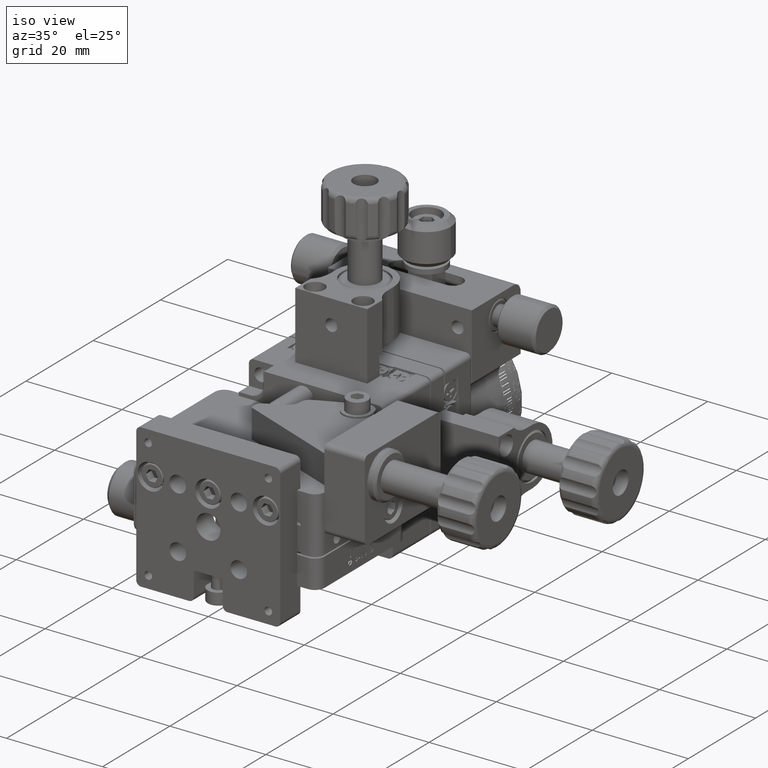
[diagram: clean part render]
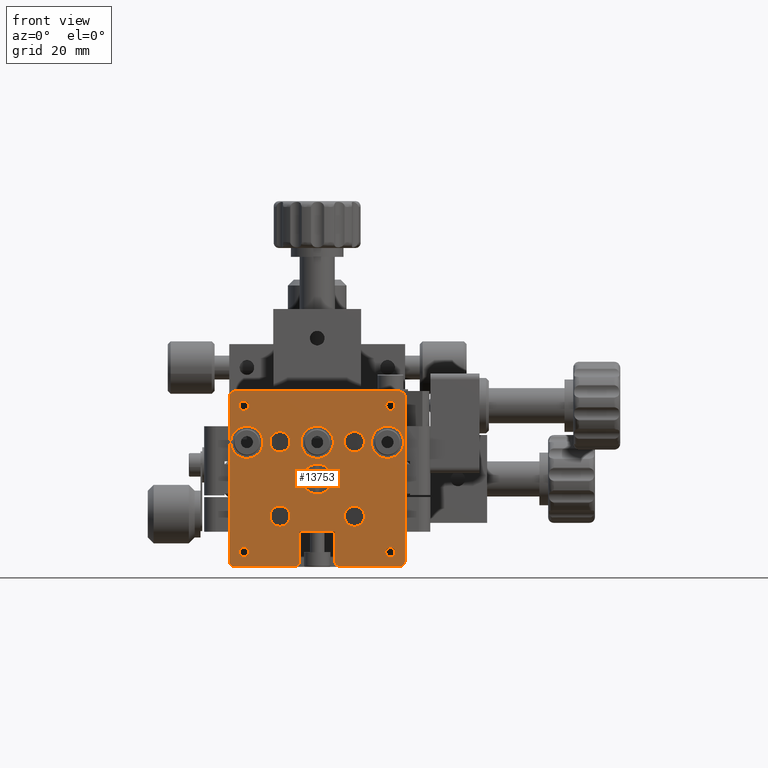
[diagram: tour spotlight — one face highlighted and labeled with its STEP entity id]
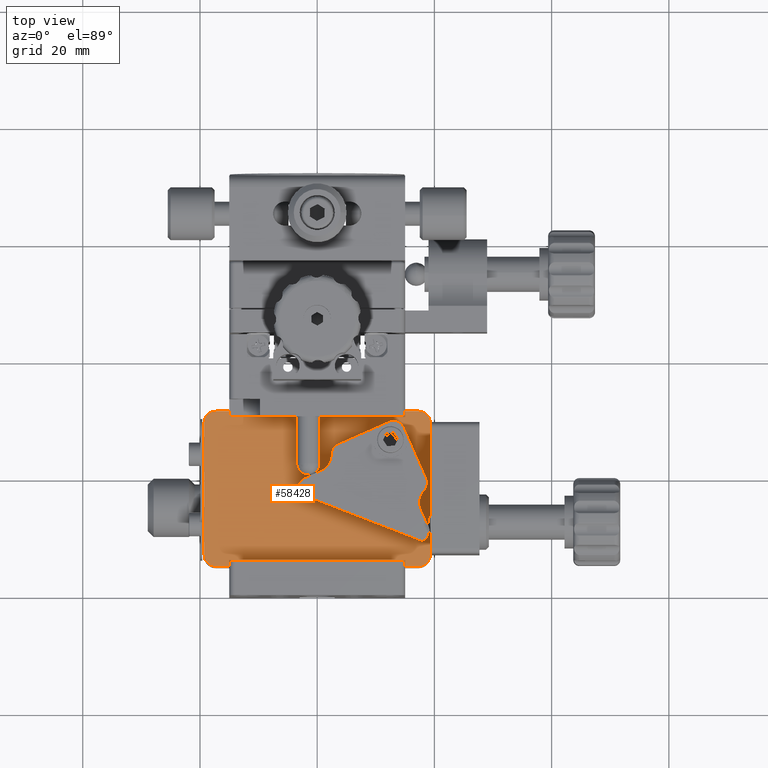
[diagram: tour spotlight — one face highlighted and labeled with its STEP entity id]
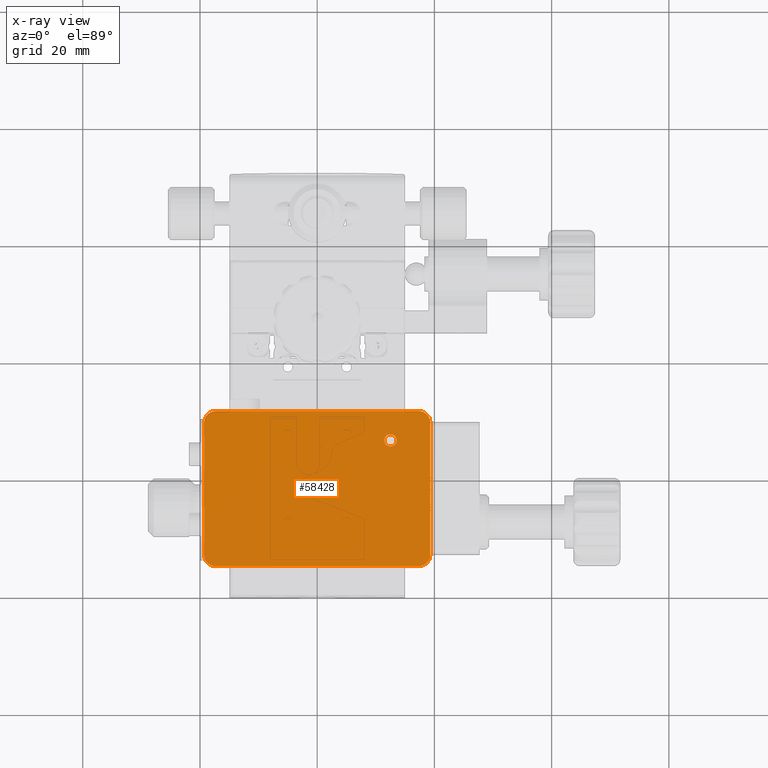
[diagram: x-ray of the same camera — body ghosted, this tour face saturated]
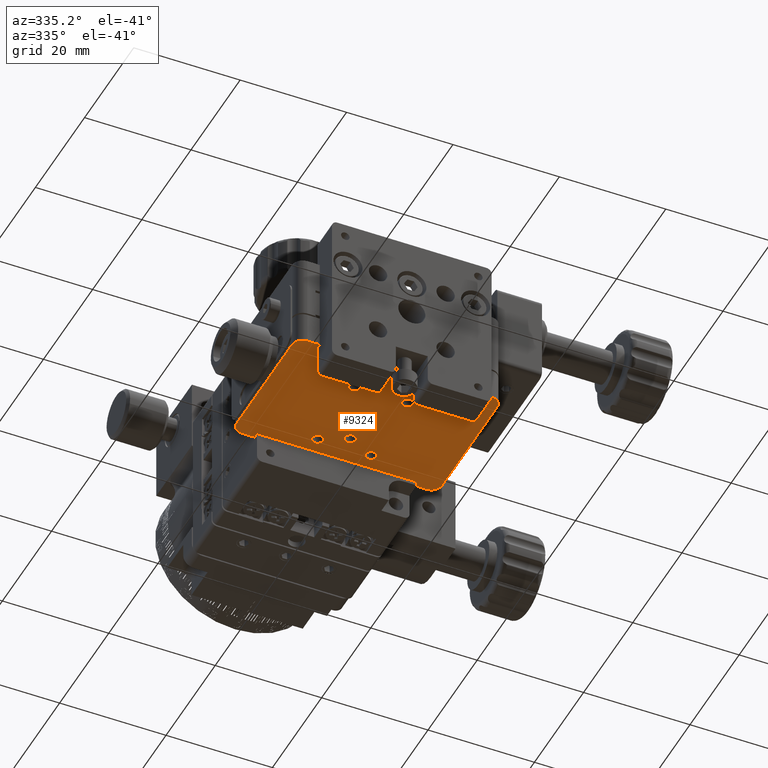
[diagram: tour spotlight — one face highlighted and labeled with its STEP entity id]
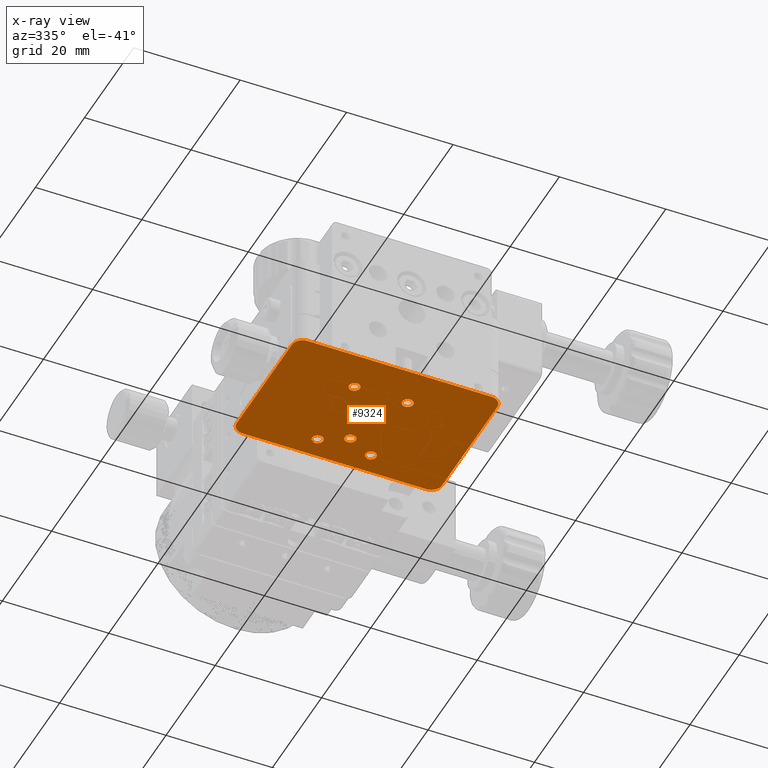
[diagram: x-ray of the same camera — body ghosted, this tour face saturated]
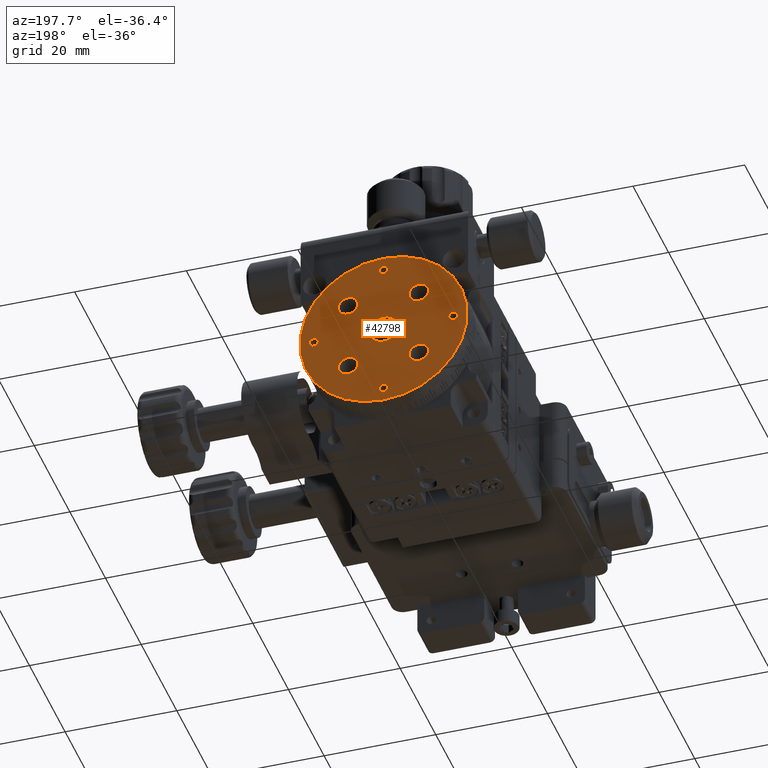
[diagram: tour spotlight — one face highlighted and labeled with its STEP entity id]
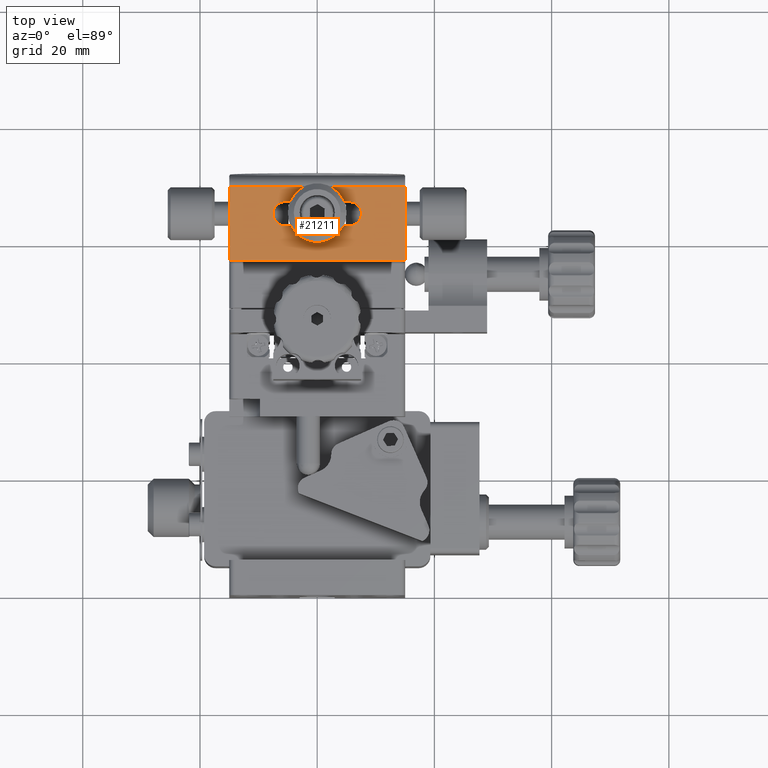
[diagram: tour spotlight — one face highlighted and labeled with its STEP entity id]
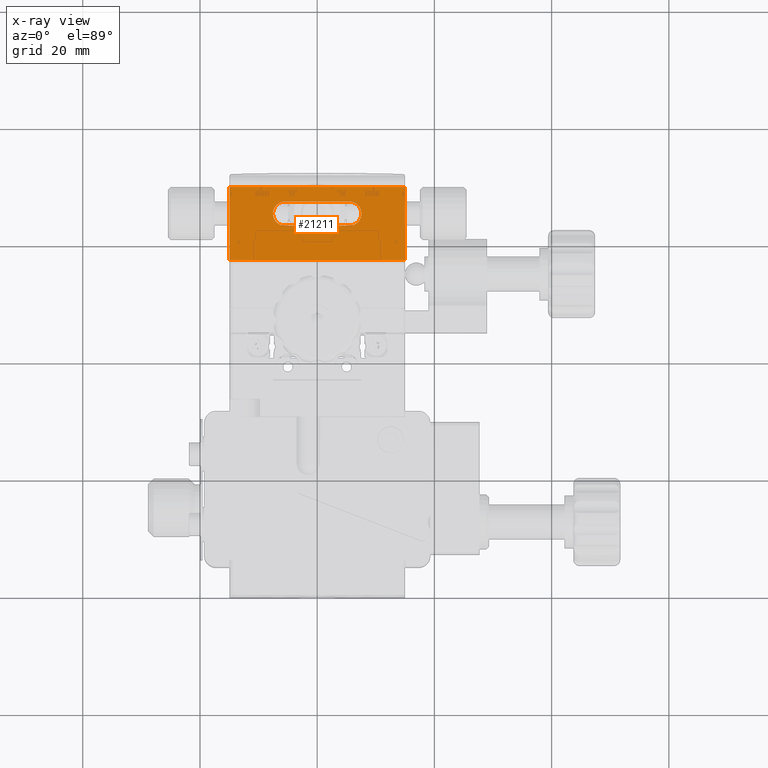
[diagram: x-ray of the same camera — body ghosted, this tour face saturated]
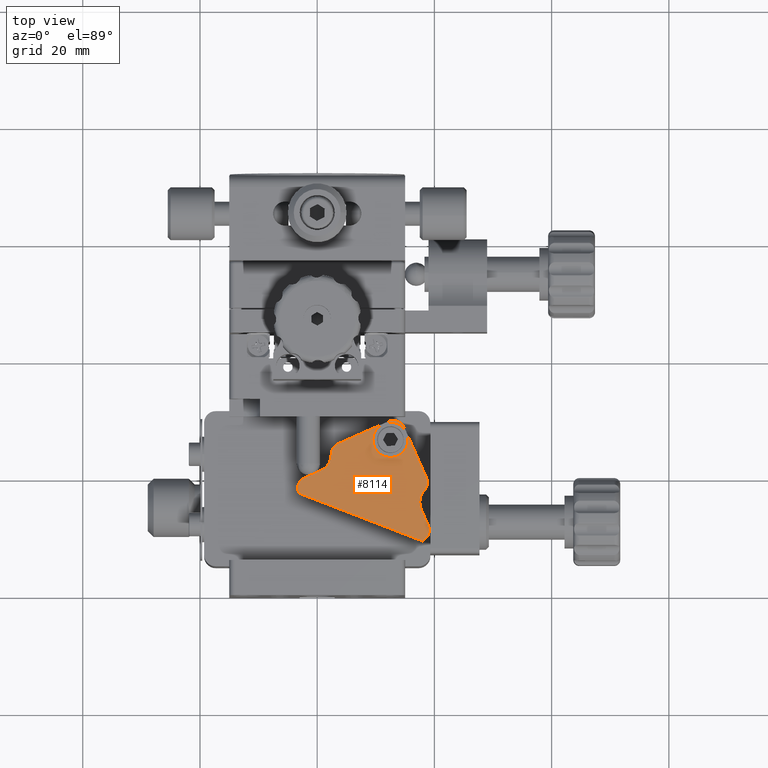
[diagram: tour spotlight — one face highlighted and labeled with its STEP entity id]
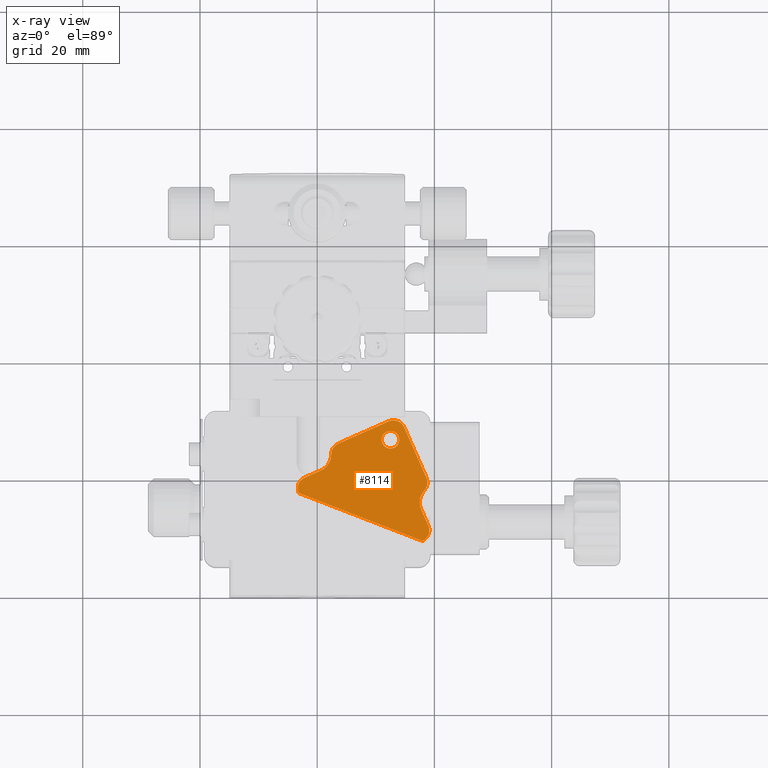
[diagram: x-ray of the same camera — body ghosted, this tour face saturated]
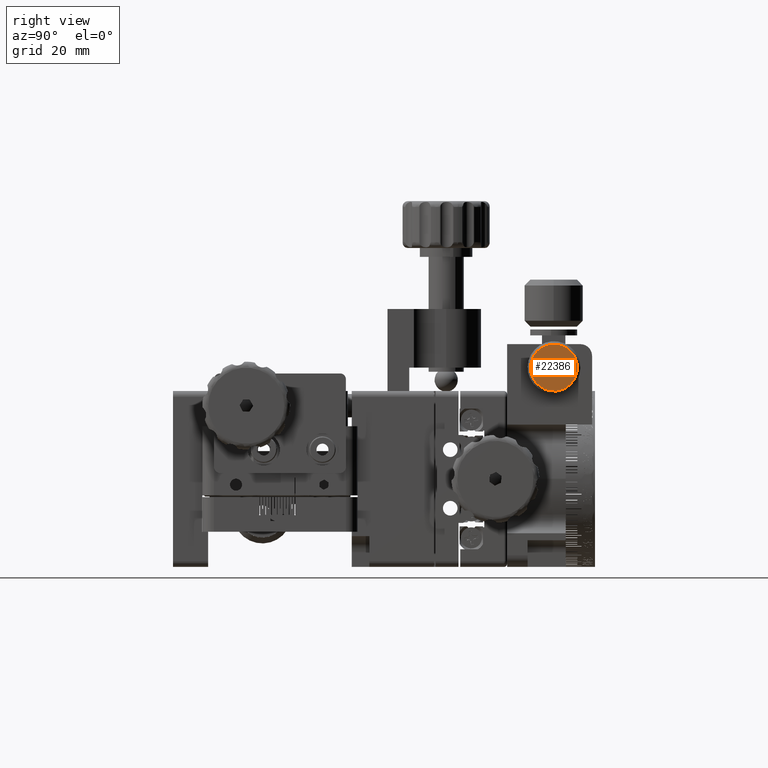
[diagram: tour spotlight — one face highlighted and labeled with its STEP entity id]
A machine part: a face-by-face anatomy tour. The part has 1294 B-rep faces; the first image is the clean iso view, then the 7 largest visible faces are spotlighted one at a time (largest first), each with its STEP entity span.

Face 1 — front view, entity #13753. In plain terms, the highlighted planar face has unit normal (0, -1, 0).
Definition (entity closure, byte-faithful):
#1228 = EDGE_CURVE ( 'NONE', #25970, #39439, #29059, .T. ) ;
#1487 = VECTOR ( 'NONE', #6531, 1000.000000000000000 ) ;
#1883 = CIRCLE ( 'NONE', #55225, 1.000000000000000888 ) ;
#2369 = FACE_BOUND ( 'NONE', #9630, .T. ) ;
#2550 = CARTESIAN_POINT ( 'NONE',  ( 0.000000000000000000, 0.000000000000000000, 2.552699999999998859 ) ) ;
#3011 = ORIENTED_EDGE ( 'NONE', *, *, #44502, .T. ) ;
#3134 = ORIENTED_EDGE ( 'NONE', *, *, #42285, .F. ) ;
#3447 = CARTESIAN_POINT ( 'NONE',  ( 14.99999999999998579, 0.000000000000000000, 15.00000000000000711 ) ) ;
#3467 = DIRECTION ( 'NONE',  ( 0.000000000000000000, 0.000000000000000000, -1.000000000000000000 ) ) ;
#3561 = PLANE ( 'NONE',  #21806 ) ;
#3975 = EDGE_CURVE ( 'NONE', #25970, #40990, #6804, .T. ) ;
#4362 = DIRECTION ( 'NONE',  ( -0.000000000000000000, 1.000000000000000000, -0.000000000000000000 ) ) ;
#4776 = CARTESIAN_POINT ( 'NONE',  ( 0.000000000000000000, 0.000000000000000000, 0.000000000000000000 ) ) ;
#4982 = EDGE_CURVE ( 'NONE', #35302, #35302, #55464, .T. ) ;
#5980 = VERTEX_POINT ( 'NONE', #37327 ) ;
#6531 = DIRECTION ( 'NONE',  ( 0.000000000000000000, 0.000000000000000000, -1.000000000000000000 ) ) ;
#6804 = LINE ( 'NONE', #12513, #67210 ) ;
#7194 = EDGE_CURVE ( 'NONE', #65757, #65757, #13693, .T. ) ;
#7479 = AXIS2_PLACEMENT_3D ( 'NONE', #4776, #4362, #60499 ) ;
#7681 = CARTESIAN_POINT ( 'NONE',  ( -3.000000000000000000, 0.000000000000000000, 0.000000000000000000 ) ) ;
#7748 = AXIS2_PLACEMENT_3D ( 'NONE', #12355, #37195, #31105 ) ;
#8372 = CARTESIAN_POINT ( 'NONE',  ( 0.000000000000000000, 0.000000000000000000, 3.500000000000001332 ) ) ;
#8482 = VERTEX_POINT ( 'NONE', #45900 ) ;
#9192 = VECTOR ( 'NONE', #20059, 1000.000000000000000 ) ;
#9630 = EDGE_LOOP ( 'NONE', ( #61390 ) ) ;
#9633 = VERTEX_POINT ( 'NONE', #67410 ) ;
#9668 = FACE_BOUND ( 'NONE', #50438, .T. ) ;
#9736 = ORIENTED_EDGE ( 'NONE', *, *, #69026, .T. ) ;
#10135 = VECTOR ( 'NONE', #18011, 1000.000000000000000 ) ;
#10250 = AXIS2_PLACEMENT_3D ( 'NONE', #44326, #61422, #74808 ) ;
#11494 = VERTEX_POINT ( 'NONE', #65014 ) ;
#12165 = DIRECTION ( 'NONE',  ( 0.000000000000000000, 0.000000000000000000, -1.000000000000000000 ) ) ;
#12355 = CARTESIAN_POINT ( 'NONE',  ( 6.349999999999933031, 0.000000000000000000, -6.350000000000067146 ) ) ;
#12513 = CARTESIAN_POINT ( 'NONE',  ( -15.00000000000001421, 0.000000000000000000, 15.00000000000000711 ) ) ;
#12616 = DIRECTION ( 'NONE',  ( 0.000000000000000000, -1.000000000000000000, 0.000000000000000000 ) ) ;
#12975 = CARTESIAN_POINT ( 'NONE',  ( 13.99999999999998401, 0.000000000000000000, 14.00000000000000533 ) ) ;
#13209 = EDGE_CURVE ( 'NONE', #73068, #24175, #65255, .T. ) ;
#13693 = CIRCLE ( 'NONE', #17662, 0.7999999999999986011 ) ;
#13753 = ADVANCED_FACE ( 'NONE', ( #58107, #27599, #58900, #2369, #59296, #45903, #21482, #9668, #40206, #77980, #34512, #45497, #77587 ), #3561, .T. ) ;
#13758 = EDGE_CURVE ( 'NONE', #5980, #5980, #67265, .T. ) ;
#13838 = AXIS2_PLACEMENT_3D ( 'NONE', #60525, #54840, #54032 ) ;
#14761 = ORIENTED_EDGE ( 'NONE', *, *, #77434, .F. ) ;
#15316 = CARTESIAN_POINT ( 'NONE',  ( -3.000000000000000000, 0.000000000000000000, -8.999999999999992895 ) ) ;
#15371 = CARTESIAN_POINT ( 'NONE',  ( -12.00000000000000000, 0.000000000000000000, 3.500000000000001332 ) ) ;
#15774 = DIRECTION ( 'NONE',  ( -0.000000000000000000, 1.000000000000000000, -0.000000000000000000 ) ) ;
#16058 = VERTEX_POINT ( 'NONE', #8372 ) ;
#16344 = CARTESIAN_POINT ( 'NONE',  ( 3.000000000000000000, 0.000000000000000000, -8.999999999999992895 ) ) ;
#16439 = DIRECTION ( 'NONE',  ( 0.000000000000000000, -1.000000000000000000, 0.000000000000000000 ) ) ;
#16538 = DIRECTION ( 'NONE',  ( 0.000000000000000000, 0.000000000000000000, 1.000000000000000000 ) ) ;
#17164 = ORIENTED_EDGE ( 'NONE', *, *, #61877, .F. ) ;
#17662 = AXIS2_PLACEMENT_3D ( 'NONE', #24866, #78959, #48073 ) ;
#18011 = DIRECTION ( 'NONE',  ( 0.000000000000000000, 0.000000000000000000, -1.000000000000000000 ) ) ;
#18050 = EDGE_CURVE ( 'NONE', #62884, #62884, #26118, .T. ) ;
#18456 = EDGE_CURVE ( 'NONE', #76274, #76274, #37689, .T. ) ;
#18671 = ORIENTED_EDGE ( 'NONE', *, *, #1228, .T. ) ;
#19497 = EDGE_LOOP ( 'NONE', ( #30947, #23905, #17164, #28179, #42805, #51683, #30543, #18671, #14761, #9736, #29430, #49698, #3011, #26100 ) ) ;
#19660 = AXIS2_PLACEMENT_3D ( 'NONE', #12975, #49627, #36234 ) ;
#19719 = DIRECTION ( 'NONE',  ( -1.000000000000000000, -0.000000000000000000, -0.000000000000000000 ) ) ;
#20059 = DIRECTION ( 'NONE',  ( 1.000000000000000000, 0.000000000000000000, 0.000000000000000000 ) ) ;
#20200 = DIRECTION ( 'NONE',  ( 0.000000000000000000, -1.000000000000000000, 0.000000000000000000 ) ) ;
#20454 = EDGE_CURVE ( 'NONE', #49289, #37919, #20465, .T. ) ;
#20465 = LINE ( 'NONE', #40367, #9192 ) ;
#20871 = AXIS2_PLACEMENT_3D ( 'NONE', #53146, #47451, #16538 ) ;
#21116 = EDGE_CURVE ( 'NONE', #73068, #40990, #54736, .T. ) ;
#21482 = FACE_BOUND ( 'NONE', #46195, .T. ) ;
#21613 = DIRECTION ( 'NONE',  ( 0.000000000000000000, 0.000000000000000000, -1.000000000000000000 ) ) ;
#21806 = AXIS2_PLACEMENT_3D ( 'NONE', #28402, #71450, #21883 ) ;
#21883 = DIRECTION ( 'NONE',  ( 0.000000000000000000, -0.000000000000000000, -1.000000000000000000 ) ) ;
#22276 = CARTESIAN_POINT ( 'NONE',  ( -6.349999999999977440, 0.000000000000000000, 4.622800000000024667 ) ) ;
#22999 = AXIS2_PLACEMENT_3D ( 'NONE', #44239, #74719, #24739 ) ;
#23876 = CIRCLE ( 'NONE', #42049, 1.000000000000000888 ) ;
#23905 = ORIENTED_EDGE ( 'NONE', *, *, #53296, .T. ) ;
#24029 = DIRECTION ( 'NONE',  ( 0.000000000000000000, 0.000000000000000000, -1.000000000000000000 ) ) ;
#24175 = VERTEX_POINT ( 'NONE', #41152 ) ;
#24593 = EDGE_CURVE ( 'NONE', #16058, #16058, #48746, .T. ) ;
#24739 = DIRECTION ( 'NONE',  ( 0.000000000000000000, 0.000000000000000000, -1.000000000000000000 ) ) ;
#24866 = CARTESIAN_POINT ( 'NONE',  ( 12.50000000000000178, 0.000000000000000000, -12.50000000000000000 ) ) ;
#25259 = CARTESIAN_POINT ( 'NONE',  ( 3.000000000000000000, 0.000000000000000000, 0.000000000000000000 ) ) ;
#25838 = CARTESIAN_POINT ( 'NONE',  ( -15.00000000000001421, 0.000000000000000000, -14.99999999999999289 ) ) ;
#25970 = VERTEX_POINT ( 'NONE', #54694 ) ;
#26100 = ORIENTED_EDGE ( 'NONE', *, *, #20454, .T. ) ;
#26118 = CIRCLE ( 'NONE', #20871, 0.7999999999999986011 ) ;
#26261 = CIRCLE ( 'NONE', #60037, 1.000000000000000888 ) ;
#26758 = CARTESIAN_POINT ( 'NONE',  ( -15.00000000000001421, 0.000000000000000000, -14.99999999999999289 ) ) ;
#26977 = VERTEX_POINT ( 'NONE', #73615 ) ;
#27172 = EDGE_CURVE ( 'NONE', #36604, #66675, #26261, .T. ) ;
#27434 = EDGE_CURVE ( 'NONE', #36604, #26977, #64401, .T. ) ;
#27599 = FACE_BOUND ( 'NONE', #38961, .T. ) ;
#28037 = CIRCLE ( 'NONE', #73472, 1.727199999999998070 ) ;
#28179 = ORIENTED_EDGE ( 'NONE', *, *, #71017, .T. ) ;
#28326 = AXIS2_PLACEMENT_3D ( 'NONE', #71852, #15774, #53204 ) ;
#28402 = CARTESIAN_POINT ( 'NONE',  ( 0.000000000000000000, 0.000000000000000000, 0.000000000000000000 ) ) ;
#29040 = EDGE_LOOP ( 'NONE', ( #78266 ) ) ;
#29059 = CIRCLE ( 'NONE', #45877, 1.000000000000000888 ) ;
#29430 = ORIENTED_EDGE ( 'NONE', *, *, #27434, .F. ) ;
#29449 = CIRCLE ( 'NONE', #13838, 0.7999999999999986011 ) ;
#29703 = ORIENTED_EDGE ( 'NONE', *, *, #62238, .F. ) ;
#30543 = ORIENTED_EDGE ( 'NONE', *, *, #3975, .F. ) ;
#30658 = CARTESIAN_POINT ( 'NONE',  ( -4.000000000000000000, 0.000000000000000000, -14.99999999999999289 ) ) ;
#30796 = AXIS2_PLACEMENT_3D ( 'NONE', #35488, #73669, #42802 ) ;
#30947 = ORIENTED_EDGE ( 'NONE', *, *, #66143, .T. ) ;
#30965 = CARTESIAN_POINT ( 'NONE',  ( 13.99999999999998401, 0.000000000000000000, -13.99999999999999112 ) ) ;
#31056 = ORIENTED_EDGE ( 'NONE', *, *, #37603, .T. ) ;
#31105 = DIRECTION ( 'NONE',  ( 0.000000000000000000, 0.000000000000000000, -1.000000000000000000 ) ) ;
#31642 = CARTESIAN_POINT ( 'NONE',  ( 6.350000000000000533, 0.000000000000000000, 4.622800000000001575 ) ) ;
#33022 = CARTESIAN_POINT ( 'NONE',  ( 13.99999999999998401, 0.000000000000000000, 15.00000000000000711 ) ) ;
#33237 = CARTESIAN_POINT ( 'NONE',  ( 4.000000000000000000, 0.000000000000000000, -13.99999999999999112 ) ) ;
#33465 = CARTESIAN_POINT ( 'NONE',  ( 6.350000000000000533, 0.000000000000000000, 6.349999999999999645 ) ) ;
#33636 = DIRECTION ( 'NONE',  ( 0.000000000000000000, -1.000000000000000000, 0.000000000000000000 ) ) ;
#33637 = DIRECTION ( 'NONE',  ( 0.000000000000000000, 0.000000000000000000, -1.000000000000000000 ) ) ;
#34022 = VERTEX_POINT ( 'NONE', #58402 ) ;
#34512 = FACE_BOUND ( 'NONE', #75386, .T. ) ;
#34535 = DIRECTION ( 'NONE',  ( 0.000000000000000000, 0.000000000000000000, -1.000000000000000000 ) ) ;
#35302 = VERTEX_POINT ( 'NONE', #15371 ) ;
#35488 = CARTESIAN_POINT ( 'NONE',  ( 12.00000000000000000, 0.000000000000000000, 6.250000000000000000 ) ) ;
#36023 = ORIENTED_EDGE ( 'NONE', *, *, #24593, .F. ) ;
#36234 = DIRECTION ( 'NONE',  ( 0.000000000000000000, 0.000000000000000000, -1.000000000000000000 ) ) ;
#36440 = EDGE_LOOP ( 'NONE', ( #66241 ) ) ;
#36604 = VERTEX_POINT ( 'NONE', #30658 ) ;
#37195 = DIRECTION ( 'NONE',  ( 0.000000000000000000, -1.000000000000000000, 0.000000000000000000 ) ) ;
#37327 = CARTESIAN_POINT ( 'NONE',  ( 12.50000000000000178, 0.000000000000000000, 13.29999999999999893 ) ) ;
#37603 = EDGE_CURVE ( 'NONE', #40786, #40786, #55524, .T. ) ;
#37662 = EDGE_LOOP ( 'NONE', ( #3134 ) ) ;
#37689 = CIRCLE ( 'NONE', #7748, 1.727199999999998070 ) ;
#37781 = VERTEX_POINT ( 'NONE', #73966 ) ;
#37784 = CIRCLE ( 'NONE', #59799, 1.727199999999998070 ) ;
#37919 = VERTEX_POINT ( 'NONE', #16344 ) ;
#38360 = VERTEX_POINT ( 'NONE', #54691 ) ;
#38570 = CARTESIAN_POINT ( 'NONE',  ( 0.000000000000000000, 0.000000000000000000, 6.250000000000000000 ) ) ;
#38961 = EDGE_LOOP ( 'NONE', ( #36023 ) ) ;
#39439 = VERTEX_POINT ( 'NONE', #40788 ) ;
#39832 = CARTESIAN_POINT ( 'NONE',  ( -14.00000000000001243, 0.000000000000000000, 14.00000000000000533 ) ) ;
#40085 = EDGE_LOOP ( 'NONE', ( #65599 ) ) ;
#40206 = FACE_BOUND ( 'NONE', #37662, .T. ) ;
#40367 = CARTESIAN_POINT ( 'NONE',  ( 0.000000000000000000, 0.000000000000000000, -8.999999999999992895 ) ) ;
#40454 = VECTOR ( 'NONE', #57306, 1000.000000000000000 ) ;
#40518 = DIRECTION ( 'NONE',  ( 0.000000000000000000, -1.000000000000000000, 0.000000000000000000 ) ) ;
#40548 = LINE ( 'NONE', #26758, #52042 ) ;
#40619 = DIRECTION ( 'NONE',  ( 0.000000000000000000, -1.000000000000000000, 0.000000000000000000 ) ) ;
#40786 = VERTEX_POINT ( 'NONE', #2550 ) ;
#40788 = CARTESIAN_POINT ( 'NONE',  ( -15.00000000000001421, 0.000000000000000000, 14.00000000000000533 ) ) ;
#40990 = VERTEX_POINT ( 'NONE', #33022 ) ;
#41152 = CARTESIAN_POINT ( 'NONE',  ( 14.99999999999998579, 0.000000000000000000, -13.99999999999999112 ) ) ;
#41324 = DIRECTION ( 'NONE',  ( 0.000000000000000000, 0.000000000000000000, -1.000000000000000000 ) ) ;
#42049 = AXIS2_PLACEMENT_3D ( 'NONE', #65271, #33636, #3467 ) ;
#42285 = EDGE_CURVE ( 'NONE', #64372, #64372, #77760, .T. ) ;
#42802 = DIRECTION ( 'NONE',  ( 0.000000000000000000, 0.000000000000000000, -1.000000000000000000 ) ) ;
#42805 = ORIENTED_EDGE ( 'NONE', *, *, #13209, .F. ) ;
#43816 = CARTESIAN_POINT ( 'NONE',  ( -12.50000000000000178, 0.000000000000000000, -11.70000000000000284 ) ) ;
#43974 = LINE ( 'NONE', #25259, #1487 ) ;
#44239 = CARTESIAN_POINT ( 'NONE',  ( -12.00000000000000000, 0.000000000000000000, 6.250000000000000000 ) ) ;
#44326 = CARTESIAN_POINT ( 'NONE',  ( -6.350000000000000533, 0.000000000000000000, -6.349999999999999645 ) ) ;
#44502 = EDGE_CURVE ( 'NONE', #66675, #49289, #63392, .T. ) ;
#45004 = VERTEX_POINT ( 'NONE', #31642 ) ;
#45497 = FACE_BOUND ( 'NONE', #61795, .T. ) ;
#45877 = AXIS2_PLACEMENT_3D ( 'NONE', #39832, #40619, #34535 ) ;
#45900 = CARTESIAN_POINT ( 'NONE',  ( -12.50000000000000178, 0.000000000000000000, 13.29999999999999893 ) ) ;
#45903 = FACE_BOUND ( 'NONE', #36440, .T. ) ;
#46195 = EDGE_LOOP ( 'NONE', ( #73346 ) ) ;
#46648 = CARTESIAN_POINT ( 'NONE',  ( -3.000000000000000000, 0.000000000000000000, -13.99999999999999112 ) ) ;
#47451 = DIRECTION ( 'NONE',  ( -0.000000000000000000, 1.000000000000000000, -0.000000000000000000 ) ) ;
#48073 = DIRECTION ( 'NONE',  ( 0.000000000000000000, 0.000000000000000000, 1.000000000000000000 ) ) ;
#48411 = DIRECTION ( 'NONE',  ( -0.000000000000000000, -0.000000000000000000, 1.000000000000000000 ) ) ;
#48746 = CIRCLE ( 'NONE', #60371, 2.749999999999999112 ) ;
#49289 = VERTEX_POINT ( 'NONE', #15316 ) ;
#49627 = DIRECTION ( 'NONE',  ( 0.000000000000000000, -1.000000000000000000, 0.000000000000000000 ) ) ;
#49698 = ORIENTED_EDGE ( 'NONE', *, *, #27172, .T. ) ;
#50438 = EDGE_LOOP ( 'NONE', ( #29703 ) ) ;
#51683 = ORIENTED_EDGE ( 'NONE', *, *, #21116, .T. ) ;
#52042 = VECTOR ( 'NONE', #64927, 1000.000000000000000 ) ;
#53146 = CARTESIAN_POINT ( 'NONE',  ( -12.50000000000000178, 0.000000000000000000, -12.50000000000000000 ) ) ;
#53204 = DIRECTION ( 'NONE',  ( 0.000000000000000000, 0.000000000000000000, 1.000000000000000000 ) ) ;
#53296 = EDGE_CURVE ( 'NONE', #11494, #38360, #68296, .T. ) ;
#54032 = DIRECTION ( 'NONE',  ( 0.000000000000000000, 0.000000000000000000, 1.000000000000000000 ) ) ;
#54154 = EDGE_CURVE ( 'NONE', #8482, #8482, #29449, .T. ) ;
#54224 = VECTOR ( 'NONE', #48411, 1000.000000000000000 ) ;
#54272 = CARTESIAN_POINT ( 'NONE',  ( -6.349999999999977440, 0.000000000000000000, 6.350000000000022737 ) ) ;
#54500 = LINE ( 'NONE', #60180, #54224 ) ;
#54691 = CARTESIAN_POINT ( 'NONE',  ( 4.000000000000000000, 0.000000000000000000, -14.99999999999999289 ) ) ;
#54694 = CARTESIAN_POINT ( 'NONE',  ( -14.00000000000001243, 0.000000000000000000, 15.00000000000000711 ) ) ;
#54736 = CIRCLE ( 'NONE', #19660, 1.000000000000000888 ) ;
#54840 = DIRECTION ( 'NONE',  ( -0.000000000000000000, 1.000000000000000000, -0.000000000000000000 ) ) ;
#55225 = AXIS2_PLACEMENT_3D ( 'NONE', #30965, #12616, #24029 ) ;
#55464 = CIRCLE ( 'NONE', #22999, 2.749999999999999112 ) ;
#55524 = CIRCLE ( 'NONE', #7479, 2.552699999999998859 ) ;
#57306 = DIRECTION ( 'NONE',  ( 0.000000000000000000, 0.000000000000000000, 1.000000000000000000 ) ) ;
#58107 = FACE_BOUND ( 'NONE', #29040, .T. ) ;
#58402 = CARTESIAN_POINT ( 'NONE',  ( 12.00000000000000000, 0.000000000000000000, 3.500000000000001332 ) ) ;
#58900 = FACE_BOUND ( 'NONE', #59740, .T. ) ;
#59218 = CARTESIAN_POINT ( 'NONE',  ( -4.000000000000000000, 0.000000000000000000, -13.99999999999999112 ) ) ;
#59296 = FACE_BOUND ( 'NONE', #40085, .T. ) ;
#59683 = CARTESIAN_POINT ( 'NONE',  ( 12.50000000000000178, 0.000000000000000000, -11.70000000000000284 ) ) ;
#59740 = EDGE_LOOP ( 'NONE', ( #67091 ) ) ;
#59799 = AXIS2_PLACEMENT_3D ( 'NONE', #54272, #16439, #60355 ) ;
#60037 = AXIS2_PLACEMENT_3D ( 'NONE', #59218, #40518, #41324 ) ;
#60180 = CARTESIAN_POINT ( 'NONE',  ( -15.00000000000001421, 0.000000000000000000, 15.00000000000000711 ) ) ;
#60355 = DIRECTION ( 'NONE',  ( 0.000000000000000000, 0.000000000000000000, -1.000000000000000000 ) ) ;
#60371 = AXIS2_PLACEMENT_3D ( 'NONE', #38570, #63349, #12165 ) ;
#60499 = DIRECTION ( 'NONE',  ( 0.000000000000000000, 0.000000000000000000, 1.000000000000000000 ) ) ;
#60525 = CARTESIAN_POINT ( 'NONE',  ( -12.50000000000000178, 0.000000000000000000, 12.50000000000000000 ) ) ;
#60547 = DIRECTION ( 'NONE',  ( 0.000000000000000000, -1.000000000000000000, 0.000000000000000000 ) ) ;
#61390 = ORIENTED_EDGE ( 'NONE', *, *, #54154, .T. ) ;
#61422 = DIRECTION ( 'NONE',  ( 0.000000000000000000, -1.000000000000000000, 0.000000000000000000 ) ) ;
#61795 = EDGE_LOOP ( 'NONE', ( #74132 ) ) ;
#61877 = EDGE_CURVE ( 'NONE', #37781, #38360, #40548, .T. ) ;
#62238 = EDGE_CURVE ( 'NONE', #77977, #77977, #37784, .T. ) ;
#62884 = VERTEX_POINT ( 'NONE', #43816 ) ;
#63349 = DIRECTION ( 'NONE',  ( -0.000000000000000000, -1.000000000000000000, -0.000000000000000000 ) ) ;
#63392 = LINE ( 'NONE', #7681, #40454 ) ;
#64028 = ORIENTED_EDGE ( 'NONE', *, *, #13758, .T. ) ;
#64372 = VERTEX_POINT ( 'NONE', #70845 ) ;
#64401 = LINE ( 'NONE', #25838, #67861 ) ;
#64525 = CIRCLE ( 'NONE', #30796, 2.749999999999999112 ) ;
#64927 = DIRECTION ( 'NONE',  ( -1.000000000000000000, -0.000000000000000000, -0.000000000000000000 ) ) ;
#65014 = CARTESIAN_POINT ( 'NONE',  ( 3.000000000000000000, 0.000000000000000000, -13.99999999999999112 ) ) ;
#65255 = LINE ( 'NONE', #3447, #10135 ) ;
#65271 = CARTESIAN_POINT ( 'NONE',  ( -14.00000000000001243, 0.000000000000000000, -13.99999999999999112 ) ) ;
#65599 = ORIENTED_EDGE ( 'NONE', *, *, #18050, .T. ) ;
#65757 = VERTEX_POINT ( 'NONE', #59683 ) ;
#66143 = EDGE_CURVE ( 'NONE', #37919, #11494, #43974, .T. ) ;
#66241 = ORIENTED_EDGE ( 'NONE', *, *, #18456, .F. ) ;
#66675 = VERTEX_POINT ( 'NONE', #46648 ) ;
#67091 = ORIENTED_EDGE ( 'NONE', *, *, #4982, .F. ) ;
#67210 = VECTOR ( 'NONE', #80433, 1000.000000000000000 ) ;
#67265 = CIRCLE ( 'NONE', #28326, 0.7999999999999986011 ) ;
#67410 = CARTESIAN_POINT ( 'NONE',  ( -15.00000000000001421, 0.000000000000000000, -13.99999999999999112 ) ) ;
#67861 = VECTOR ( 'NONE', #19719, 1000.000000000000000 ) ;
#68296 = CIRCLE ( 'NONE', #77396, 1.000000000000000888 ) ;
#68970 = CARTESIAN_POINT ( 'NONE',  ( 6.349999999999933031, 0.000000000000000000, -8.077200000000065216 ) ) ;
#69026 = EDGE_CURVE ( 'NONE', #9633, #26977, #23876, .T. ) ;
#69456 = EDGE_LOOP ( 'NONE', ( #31056 ) ) ;
#70845 = CARTESIAN_POINT ( 'NONE',  ( -6.350000000000000533, 0.000000000000000000, -8.077199999999997715 ) ) ;
#71017 = EDGE_CURVE ( 'NONE', #37781, #24175, #1883, .T. ) ;
#71450 = DIRECTION ( 'NONE',  ( 0.000000000000000000, -1.000000000000000000, 0.000000000000000000 ) ) ;
#71852 = CARTESIAN_POINT ( 'NONE',  ( 12.50000000000000178, 0.000000000000000000, 12.50000000000000000 ) ) ;
#73048 = EDGE_CURVE ( 'NONE', #45004, #45004, #28037, .T. ) ;
#73068 = VERTEX_POINT ( 'NONE', #79246 ) ;
#73346 = ORIENTED_EDGE ( 'NONE', *, *, #73048, .F. ) ;
#73472 = AXIS2_PLACEMENT_3D ( 'NONE', #33465, #60547, #21613 ) ;
#73615 = CARTESIAN_POINT ( 'NONE',  ( -14.00000000000001243, 0.000000000000000000, -14.99999999999999289 ) ) ;
#73669 = DIRECTION ( 'NONE',  ( -0.000000000000000000, -1.000000000000000000, -0.000000000000000000 ) ) ;
#73966 = CARTESIAN_POINT ( 'NONE',  ( 13.99999999999998401, 0.000000000000000000, -14.99999999999999289 ) ) ;
#74132 = ORIENTED_EDGE ( 'NONE', *, *, #7194, .T. ) ;
#74719 = DIRECTION ( 'NONE',  ( -0.000000000000000000, -1.000000000000000000, -0.000000000000000000 ) ) ;
#74808 = DIRECTION ( 'NONE',  ( 0.000000000000000000, 0.000000000000000000, -1.000000000000000000 ) ) ;
#75386 = EDGE_LOOP ( 'NONE', ( #64028 ) ) ;
#76274 = VERTEX_POINT ( 'NONE', #68970 ) ;
#77080 = EDGE_CURVE ( 'NONE', #34022, #34022, #64525, .T. ) ;
#77396 = AXIS2_PLACEMENT_3D ( 'NONE', #33237, #20200, #33637 ) ;
#77434 = EDGE_CURVE ( 'NONE', #9633, #39439, #54500, .T. ) ;
#77587 = FACE_OUTER_BOUND ( 'NONE', #19497, .T. ) ;
#77760 = CIRCLE ( 'NONE', #10250, 1.727199999999998070 ) ;
#77977 = VERTEX_POINT ( 'NONE', #22276 ) ;
#77980 = FACE_BOUND ( 'NONE', #69456, .T. ) ;
#78266 = ORIENTED_EDGE ( 'NONE', *, *, #77080, .F. ) ;
#78959 = DIRECTION ( 'NONE',  ( -0.000000000000000000, 1.000000000000000000, -0.000000000000000000 ) ) ;
#79246 = CARTESIAN_POINT ( 'NONE',  ( 14.99999999999998579, 0.000000000000000000, 14.00000000000000533 ) ) ;
#80433 = DIRECTION ( 'NONE',  ( 1.000000000000000000, 0.000000000000000000, 0.000000000000000000 ) ) ;

Face 2 — top view, entity #58428. An x-ray twin of the same camera follows (body ghosted, this face saturated) — the face is partly hidden behind the body. In plain terms, the highlighted planar face has unit normal (0, 0, 1).
Definition (entity closure, byte-faithful):
#666 = DIRECTION ( 'NONE',  ( 1.000000000000000000, 0.000000000000000000, 0.000000000000000000 ) ) ;
#751 = CARTESIAN_POINT ( 'NONE',  ( 19.29999999999998650, 6.999999999999999112, 9.000000000000007105 ) ) ;
#3068 = DIRECTION ( 'NONE',  ( -0.000000000000000000, -1.000000000000000000, 2.220446049250313574E-16 ) ) ;
#4198 = CIRCLE ( 'NONE', #40569, 2.000000000000001776 ) ;
#4745 = VERTEX_POINT ( 'NONE', #33743 ) ;
#5205 = DIRECTION ( 'NONE',  ( 0.000000000000000000, 0.000000000000000000, 1.000000000000000000 ) ) ;
#6169 = ORIENTED_EDGE ( 'NONE', *, *, #23047, .F. ) ;
#7689 = DIRECTION ( 'NONE',  ( 1.000000000000000000, 0.000000000000000000, 0.000000000000000000 ) ) ;
#9730 = VERTEX_POINT ( 'NONE', #80435 ) ;
#11558 = DIRECTION ( 'NONE',  ( 1.000000000000000000, 0.000000000000000000, 0.000000000000000000 ) ) ;
#13400 = DIRECTION ( 'NONE',  ( -1.000000000000000000, 0.000000000000000000, 0.000000000000000000 ) ) ;
#16047 = VECTOR ( 'NONE', #63506, 1000.000000000000000 ) ;
#16177 = AXIS2_PLACEMENT_3D ( 'NONE', #56925, #76794, #13400 ) ;
#17869 = AXIS2_PLACEMENT_3D ( 'NONE', #56405, #25901, #666 ) ;
#17901 = VERTEX_POINT ( 'NONE', #32869 ) ;
#19751 = CARTESIAN_POINT ( 'NONE',  ( 17.29999999999998650, 4.999999999999997335, 9.000000000000008882 ) ) ;
#20975 = CARTESIAN_POINT ( 'NONE',  ( 13.52499999999997193, 26.50000000000000000, 9.000000000000007105 ) ) ;
#21019 = CIRCLE ( 'NONE', #28819, 2.000000000000001776 ) ;
#22119 = CARTESIAN_POINT ( 'NONE',  ( 17.29999999999998650, 4.999999999999997335, 9.000000000000008882 ) ) ;
#23047 = EDGE_CURVE ( 'NONE', #53092, #53092, #27664, .T. ) ;
#23120 = EDGE_CURVE ( 'NONE', #9730, #17901, #40609, .T. ) ;
#25660 = ORIENTED_EDGE ( 'NONE', *, *, #45725, .T. ) ;
#25901 = DIRECTION ( 'NONE',  ( 0.000000000000000000, 0.000000000000000000, 1.000000000000000000 ) ) ;
#25996 = DIRECTION ( 'NONE',  ( 0.000000000000000000, 0.000000000000000000, 1.000000000000000000 ) ) ;
#26779 = CARTESIAN_POINT ( 'NONE',  ( 17.29999999999998650, 31.50000000000000000, 9.000000000000003553 ) ) ;
#27181 = LINE ( 'NONE', #26779, #54292 ) ;
#27664 = CIRCLE ( 'NONE', #73098, 1.024999999999989475 ) ;
#28819 = AXIS2_PLACEMENT_3D ( 'NONE', #39794, #25996, #71042 ) ;
#29245 = CARTESIAN_POINT ( 'NONE',  ( 17.29999999999998650, 6.999999999999999112, 9.000000000000007105 ) ) ;
#30198 = VERTEX_POINT ( 'NONE', #19751 ) ;
#30832 = VERTEX_POINT ( 'NONE', #751 ) ;
#31844 = LINE ( 'NONE', #56622, #16047 ) ;
#32869 = CARTESIAN_POINT ( 'NONE',  ( 17.29999999999998650, 31.50000000000000000, 9.000000000000003553 ) ) ;
#33743 = CARTESIAN_POINT ( 'NONE',  ( -17.30000000000001847, 4.999999999999997335, 9.000000000000008882 ) ) ;
#35811 = ORIENTED_EDGE ( 'NONE', *, *, #38046, .T. ) ;
#36120 = ORIENTED_EDGE ( 'NONE', *, *, #47750, .T. ) ;
#36353 = DIRECTION ( 'NONE',  ( 0.000000000000000000, 0.000000000000000000, 1.000000000000000000 ) ) ;
#36556 = DIRECTION ( 'NONE',  ( -1.000000000000000000, 0.000000000000000000, 0.000000000000000000 ) ) ;
#37719 = FACE_BOUND ( 'NONE', #74954, .T. ) ;
#38046 = EDGE_CURVE ( 'NONE', #17901, #64335, #27181, .T. ) ;
#39794 = CARTESIAN_POINT ( 'NONE',  ( -17.30000000000001847, 29.49999999999999645, 9.000000000000005329 ) ) ;
#40569 = AXIS2_PLACEMENT_3D ( 'NONE', #29245, #5205, #36556 ) ;
#40609 = CIRCLE ( 'NONE', #51019, 2.000000000000001776 ) ;
#43373 = VECTOR ( 'NONE', #11558, 1000.000000000000000 ) ;
#43601 = VERTEX_POINT ( 'NONE', #67283 ) ;
#45469 = DIRECTION ( 'NONE',  ( -1.000000000000000000, 0.000000000000000000, 0.000000000000000000 ) ) ;
#45725 = EDGE_CURVE ( 'NONE', #30198, #30832, #4198, .T. ) ;
#45909 = DIRECTION ( 'NONE',  ( 0.000000000000000000, 0.000000000000000000, 1.000000000000000000 ) ) ;
#47349 = LINE ( 'NONE', #22119, #43373 ) ;
#47639 = EDGE_CURVE ( 'NONE', #43601, #80515, #65673, .T. ) ;
#47750 = EDGE_CURVE ( 'NONE', #30832, #9730, #31844, .T. ) ;
#48715 = EDGE_LOOP ( 'NONE', ( #66041, #35811, #62989, #66981, #54050, #51002, #25660, #36120 ) ) ;
#50124 = EDGE_CURVE ( 'NONE', #4745, #30198, #47349, .T. ) ;
#50828 = DIRECTION ( 'NONE',  ( 1.000000000000000000, 0.000000000000000000, 0.000000000000000000 ) ) ;
#51002 = ORIENTED_EDGE ( 'NONE', *, *, #50124, .T. ) ;
#51019 = AXIS2_PLACEMENT_3D ( 'NONE', #64984, #45909, #7689 ) ;
#53092 = VERTEX_POINT ( 'NONE', #20975 ) ;
#54050 = ORIENTED_EDGE ( 'NONE', *, *, #71087, .T. ) ;
#54292 = VECTOR ( 'NONE', #45469, 1000.000000000000000 ) ;
#55434 = CARTESIAN_POINT ( 'NONE',  ( 12.49999999999998401, 26.50000000000000000, 9.000000000000007105 ) ) ;
#56405 = CARTESIAN_POINT ( 'NONE',  ( 17.29999999999998650, 29.49999999999999645, 9.000000000000005329 ) ) ;
#56622 = CARTESIAN_POINT ( 'NONE',  ( 19.29999999999998650, 6.999999999999999112, 9.000000000000007105 ) ) ;
#56925 = CARTESIAN_POINT ( 'NONE',  ( -17.30000000000001847, 6.999999999999999112, 9.000000000000007105 ) ) ;
#57690 = CARTESIAN_POINT ( 'NONE',  ( -17.30000000000001847, 31.50000000000000000, 9.000000000000003553 ) ) ;
#58428 = ADVANCED_FACE ( 'NONE', ( #37719, #62487 ), #63673, .T. ) ;
#62487 = FACE_OUTER_BOUND ( 'NONE', #48715, .T. ) ;
#62989 = ORIENTED_EDGE ( 'NONE', *, *, #64345, .T. ) ;
#63506 = DIRECTION ( 'NONE',  ( 0.000000000000000000, 1.000000000000000000, -2.220446049250313574E-16 ) ) ;
#63673 = PLANE ( 'NONE',  #17869 ) ;
#63775 = CARTESIAN_POINT ( 'NONE',  ( -19.30000000000002203, 6.999999999999999112, 9.000000000000007105 ) ) ;
#64335 = VERTEX_POINT ( 'NONE', #57690 ) ;
#64345 = EDGE_CURVE ( 'NONE', #64335, #43601, #21019, .T. ) ;
#64984 = CARTESIAN_POINT ( 'NONE',  ( 17.29999999999998650, 29.49999999999999645, 9.000000000000005329 ) ) ;
#65673 = LINE ( 'NONE', #71360, #69220 ) ;
#66041 = ORIENTED_EDGE ( 'NONE', *, *, #23120, .T. ) ;
#66981 = ORIENTED_EDGE ( 'NONE', *, *, #47639, .T. ) ;
#67283 = CARTESIAN_POINT ( 'NONE',  ( -19.30000000000002203, 29.49999999999999645, 9.000000000000005329 ) ) ;
#69220 = VECTOR ( 'NONE', #3068, 1000.000000000000000 ) ;
#71042 = DIRECTION ( 'NONE',  ( -1.000000000000000000, 0.000000000000000000, 0.000000000000000000 ) ) ;
#71087 = EDGE_CURVE ( 'NONE', #80515, #4745, #77241, .T. ) ;
#71360 = CARTESIAN_POINT ( 'NONE',  ( -19.30000000000002203, 6.999999999999999112, 9.000000000000007105 ) ) ;
#73098 = AXIS2_PLACEMENT_3D ( 'NONE', #55434, #36353, #50828 ) ;
#74954 = EDGE_LOOP ( 'NONE', ( #6169 ) ) ;
#76794 = DIRECTION ( 'NONE',  ( 0.000000000000000000, 0.000000000000000000, 1.000000000000000000 ) ) ;
#77241 = CIRCLE ( 'NONE', #16177, 2.000000000000001776 ) ;
#80435 = CARTESIAN_POINT ( 'NONE',  ( 19.29999999999998650, 29.49999999999999645, 9.000000000000005329 ) ) ;
#80515 = VERTEX_POINT ( 'NONE', #63775 ) ;

Face 3 — auxiliary view, entity #9324. An x-ray twin of the same camera follows (body ghosted, this face saturated) — the face is partly hidden behind the body. In plain terms, the highlighted planar face has unit normal (0, -0, 1).
Definition (entity closure, byte-faithful):
#454 = AXIS2_PLACEMENT_3D ( 'NONE', #23217, #11005, #29743 ) ;
#1784 = VERTEX_POINT ( 'NONE', #12434 ) ;
#2394 = LINE ( 'NONE', #50849, #7191 ) ;
#2641 = ORIENTED_EDGE ( 'NONE', *, *, #71925, .T. ) ;
#3012 = VERTEX_POINT ( 'NONE', #47663 ) ;
#3752 = ORIENTED_EDGE ( 'NONE', *, *, #4089, .T. ) ;
#4089 = EDGE_CURVE ( 'NONE', #33709, #33709, #65915, .T. ) ;
#4107 = EDGE_CURVE ( 'NONE', #3012, #1784, #46428, .T. ) ;
#5116 = EDGE_CURVE ( 'NONE', #72252, #72252, #19119, .T. ) ;
#5879 = EDGE_CURVE ( 'NONE', #44984, #3012, #54419, .T. ) ;
#6788 = CARTESIAN_POINT ( 'NONE',  ( -4.999999999999930722, 27.50212255370680481, -9.000000000000010658 ) ) ;
#7191 = VECTOR ( 'NONE', #39036, 1000.000000000000000 ) ;
#8170 = ORIENTED_EDGE ( 'NONE', *, *, #68753, .F. ) ;
#9324 = ADVANCED_FACE ( 'NONE', ( #18724, #55337, #25233, #43945, #36655, #43539 ), #67510, .F. ) ;
#10121 = DIRECTION ( 'NONE',  ( 1.000000000000000000, 0.000000000000000000, 0.000000000000000000 ) ) ;
#10465 = CARTESIAN_POINT ( 'NONE',  ( -4.999999999999929834, 13.52712255370680694, -9.000000000000010658 ) ) ;
#11005 = DIRECTION ( 'NONE',  ( 0.000000000000000000, 0.000000000000000000, 1.000000000000000000 ) ) ;
#11387 = AXIS2_PLACEMENT_3D ( 'NONE', #27515, #52323, #38523 ) ;
#11786 = VECTOR ( 'NONE', #10121, 1000.000000000000000 ) ;
#11919 = DIRECTION ( 'NONE',  ( -0.000000000000000000, -0.000000000000000000, -1.000000000000000000 ) ) ;
#11961 = CARTESIAN_POINT ( 'NONE',  ( -17.29999999999965254, 7.002122553706814578, -9.000000000000010658 ) ) ;
#12370 = VERTEX_POINT ( 'NONE', #22880 ) ;
#12434 = CARTESIAN_POINT ( 'NONE',  ( 19.30000000000035243, 29.50212255370680836, -9.000000000000010658 ) ) ;
#14688 = EDGE_CURVE ( 'NONE', #79189, #79189, #44076, .T. ) ;
#15240 = AXIS2_PLACEMENT_3D ( 'NONE', #64498, #39321, #50731 ) ;
#15792 = CARTESIAN_POINT ( 'NONE',  ( 17.30000000000035598, 7.002122553706814578, -9.000000000000010658 ) ) ;
#16692 = ORIENTED_EDGE ( 'NONE', *, *, #17716, .F. ) ;
#17199 = CIRCLE ( 'NONE', #47024, 2.000000000000000000 ) ;
#17716 = EDGE_CURVE ( 'NONE', #48625, #77575, #60551, .T. ) ;
#18200 = DIRECTION ( 'NONE',  ( 0.000000000000000000, -1.000000000000000000, 0.000000000000000000 ) ) ;
#18464 = DIRECTION ( 'NONE',  ( -0.000000000000000000, -0.000000000000000000, -1.000000000000000000 ) ) ;
#18522 = CARTESIAN_POINT ( 'NONE',  ( -17.29999999999965254, 5.002122553706814578, -9.000000000000010658 ) ) ;
#18601 = DIRECTION ( 'NONE',  ( 0.000000000000000000, 0.000000000000000000, -1.000000000000000000 ) ) ;
#18724 = FACE_BOUND ( 'NONE', #80001, .T. ) ;
#19119 = CIRCLE ( 'NONE', #74939, 1.024999999999998135 ) ;
#19308 = EDGE_LOOP ( 'NONE', ( #41240 ) ) ;
#19448 = CIRCLE ( 'NONE', #27224, 2.000000000000001776 ) ;
#20583 = CARTESIAN_POINT ( 'NONE',  ( 3.504141421473150331E-13, 23.97712255370682044, -9.000000000000010658 ) ) ;
#21366 = CARTESIAN_POINT ( 'NONE',  ( -4.999999999999930722, 28.52712255370680339, -9.000000000000010658 ) ) ;
#22299 = DIRECTION ( 'NONE',  ( 0.000000000000000000, 1.000000000000000000, 0.000000000000000000 ) ) ;
#22420 = EDGE_CURVE ( 'NONE', #58785, #58785, #60050, .T. ) ;
#22880 = CARTESIAN_POINT ( 'NONE',  ( 19.30000000000035243, 7.002122553706814578, -9.000000000000010658 ) ) ;
#22893 = CARTESIAN_POINT ( 'NONE',  ( 5.000000000000065725, 13.52712255370680872, -9.000000000000010658 ) ) ;
#23217 = CARTESIAN_POINT ( 'NONE',  ( 5.000000000000065725, 12.50212255370681014, -9.000000000000010658 ) ) ;
#24435 = DIRECTION ( 'NONE',  ( 0.000000000000000000, 1.000000000000000000, 0.000000000000000000 ) ) ;
#25233 = FACE_BOUND ( 'NONE', #58142, .T. ) ;
#27224 = AXIS2_PLACEMENT_3D ( 'NONE', #48135, #11919, #80239 ) ;
#27348 = CARTESIAN_POINT ( 'NONE',  ( -19.29999999999964899, 29.50212255370680836, -9.000000000000010658 ) ) ;
#27515 = CARTESIAN_POINT ( 'NONE',  ( 17.30000000000035598, 29.50212255370680836, -9.000000000000010658 ) ) ;
#27526 = CARTESIAN_POINT ( 'NONE',  ( 5.000000000000066613, 27.50212255370680836, -9.000000000000010658 ) ) ;
#29743 = DIRECTION ( 'NONE',  ( 0.000000000000000000, 1.000000000000000000, 0.000000000000000000 ) ) ;
#30634 = AXIS2_PLACEMENT_3D ( 'NONE', #68705, #38236, #24435 ) ;
#30767 = ORIENTED_EDGE ( 'NONE', *, *, #4107, .T. ) ;
#30849 = DIRECTION ( 'NONE',  ( 0.000000000000000000, -1.000000000000000000, 0.000000000000000000 ) ) ;
#31240 = CARTESIAN_POINT ( 'NONE',  ( 3.504141421473150331E-13, 25.00212255370681191, -9.000000000000010658 ) ) ;
#31640 = DIRECTION ( 'NONE',  ( 0.000000000000000000, 0.000000000000000000, 1.000000000000000000 ) ) ;
#33709 = VERTEX_POINT ( 'NONE', #10465 ) ;
#36655 = FACE_BOUND ( 'NONE', #71225, .T. ) ;
#38236 = DIRECTION ( 'NONE',  ( 0.000000000000000000, -0.000000000000000000, 1.000000000000000000 ) ) ;
#38523 = DIRECTION ( 'NONE',  ( 0.000000000000000000, 1.000000000000000000, 0.000000000000000000 ) ) ;
#38540 = AXIS2_PLACEMENT_3D ( 'NONE', #15792, #77205, #22299 ) ;
#39036 = DIRECTION ( 'NONE',  ( 0.000000000000000000, -1.000000000000000000, 0.000000000000000000 ) ) ;
#39321 = DIRECTION ( 'NONE',  ( 0.000000000000000000, 0.000000000000000000, 1.000000000000000000 ) ) ;
#41240 = ORIENTED_EDGE ( 'NONE', *, *, #22420, .T. ) ;
#41412 = CARTESIAN_POINT ( 'NONE',  ( -19.29999999999964899, 5.002122553706814578, -9.000000000000010658 ) ) ;
#42880 = EDGE_CURVE ( 'NONE', #50291, #44984, #19448, .T. ) ;
#43539 = FACE_OUTER_BOUND ( 'NONE', #58970, .T. ) ;
#43945 = FACE_BOUND ( 'NONE', #69152, .T. ) ;
#44076 = CIRCLE ( 'NONE', #68713, 1.024999999999991251 ) ;
#44984 = VERTEX_POINT ( 'NONE', #78597 ) ;
#46428 = CIRCLE ( 'NONE', #11387, 2.000000000000001776 ) ;
#46626 = DIRECTION ( 'NONE',  ( 0.000000000000000000, 1.000000000000000000, 0.000000000000000000 ) ) ;
#47024 = AXIS2_PLACEMENT_3D ( 'NONE', #11961, #18464, #67252 ) ;
#47083 = EDGE_CURVE ( 'NONE', #48113, #48113, #75723, .T. ) ;
#47155 = VECTOR ( 'NONE', #48325, 1000.000000000000000 ) ;
#47663 = CARTESIAN_POINT ( 'NONE',  ( 17.30000000000035598, 31.50212255370680836, -9.000000000000010658 ) ) ;
#48113 = VERTEX_POINT ( 'NONE', #22893 ) ;
#48135 = CARTESIAN_POINT ( 'NONE',  ( -17.29999999999965254, 29.50212255370680836, -9.000000000000010658 ) ) ;
#48325 = DIRECTION ( 'NONE',  ( 1.000000000000000000, 0.000000000000000000, 0.000000000000000000 ) ) ;
#48625 = VERTEX_POINT ( 'NONE', #18522 ) ;
#50291 = VERTEX_POINT ( 'NONE', #27348 ) ;
#50731 = DIRECTION ( 'NONE',  ( 0.000000000000000000, 1.000000000000000000, 0.000000000000000000 ) ) ;
#50849 = CARTESIAN_POINT ( 'NONE',  ( 19.30000000000035243, 5.002122553706814578, -9.000000000000010658 ) ) ;
#52323 = DIRECTION ( 'NONE',  ( -0.000000000000000000, -0.000000000000000000, -1.000000000000000000 ) ) ;
#54015 = EDGE_CURVE ( 'NONE', #12370, #77575, #65723, .T. ) ;
#54419 = LINE ( 'NONE', #79201, #47155 ) ;
#55337 = FACE_BOUND ( 'NONE', #19308, .T. ) ;
#57300 = VERTEX_POINT ( 'NONE', #59663 ) ;
#57451 = AXIS2_PLACEMENT_3D ( 'NONE', #6788, #31640, #75099 ) ;
#58033 = DIRECTION ( 'NONE',  ( 0.000000000000000000, 0.000000000000000000, 1.000000000000000000 ) ) ;
#58142 = EDGE_LOOP ( 'NONE', ( #3752 ) ) ;
#58785 = VERTEX_POINT ( 'NONE', #21366 ) ;
#58970 = EDGE_LOOP ( 'NONE', ( #2641, #79759, #16692, #72746, #8170, #66941, #69563, #30767 ) ) ;
#59663 = CARTESIAN_POINT ( 'NONE',  ( -19.29999999999964899, 7.002122553706814578, -9.000000000000010658 ) ) ;
#59700 = LINE ( 'NONE', #41412, #75730 ) ;
#60050 = CIRCLE ( 'NONE', #57451, 1.024999999999998135 ) ;
#60081 = CARTESIAN_POINT ( 'NONE',  ( 5.000000000000066613, 28.52712255370680694, -9.000000000000010658 ) ) ;
#60551 = LINE ( 'NONE', #77626, #11786 ) ;
#64498 = CARTESIAN_POINT ( 'NONE',  ( -4.999999999999929834, 12.50212255370680836, -9.000000000000010658 ) ) ;
#65723 = CIRCLE ( 'NONE', #38540, 2.000000000000000000 ) ;
#65915 = CIRCLE ( 'NONE', #15240, 1.024999999999998135 ) ;
#66941 = ORIENTED_EDGE ( 'NONE', *, *, #42880, .T. ) ;
#67184 = EDGE_CURVE ( 'NONE', #48625, #57300, #17199, .T. ) ;
#67252 = DIRECTION ( 'NONE',  ( 0.000000000000000000, 1.000000000000000000, 0.000000000000000000 ) ) ;
#67510 = PLANE ( 'NONE',  #30634 ) ;
#68705 = CARTESIAN_POINT ( 'NONE',  ( -19.29999999999964899, 5.002122553706814578, -9.000000000000010658 ) ) ;
#68713 = AXIS2_PLACEMENT_3D ( 'NONE', #31240, #18601, #18200 ) ;
#68753 = EDGE_CURVE ( 'NONE', #50291, #57300, #59700, .T. ) ;
#68754 = ORIENTED_EDGE ( 'NONE', *, *, #14688, .F. ) ;
#69152 = EDGE_LOOP ( 'NONE', ( #71814 ) ) ;
#69563 = ORIENTED_EDGE ( 'NONE', *, *, #5879, .T. ) ;
#70847 = ORIENTED_EDGE ( 'NONE', *, *, #5116, .T. ) ;
#71225 = EDGE_LOOP ( 'NONE', ( #70847 ) ) ;
#71814 = ORIENTED_EDGE ( 'NONE', *, *, #47083, .T. ) ;
#71925 = EDGE_CURVE ( 'NONE', #1784, #12370, #2394, .T. ) ;
#72252 = VERTEX_POINT ( 'NONE', #60081 ) ;
#72746 = ORIENTED_EDGE ( 'NONE', *, *, #67184, .T. ) ;
#74939 = AXIS2_PLACEMENT_3D ( 'NONE', #27526, #58033, #46626 ) ;
#75099 = DIRECTION ( 'NONE',  ( 0.000000000000000000, 1.000000000000000000, 0.000000000000000000 ) ) ;
#75723 = CIRCLE ( 'NONE', #454, 1.024999999999998135 ) ;
#75730 = VECTOR ( 'NONE', #30849, 1000.000000000000000 ) ;
#76758 = CARTESIAN_POINT ( 'NONE',  ( 17.30000000000035598, 5.002122553706814578, -9.000000000000010658 ) ) ;
#77205 = DIRECTION ( 'NONE',  ( -0.000000000000000000, -0.000000000000000000, -1.000000000000000000 ) ) ;
#77575 = VERTEX_POINT ( 'NONE', #76758 ) ;
#77626 = CARTESIAN_POINT ( 'NONE',  ( -19.29999999999964899, 5.002122553706814578, -9.000000000000010658 ) ) ;
#78597 = CARTESIAN_POINT ( 'NONE',  ( -17.29999999999965254, 31.50212255370680836, -9.000000000000010658 ) ) ;
#79189 = VERTEX_POINT ( 'NONE', #20583 ) ;
#79201 = CARTESIAN_POINT ( 'NONE',  ( -19.29999999999964899, 31.50212255370680836, -9.000000000000010658 ) ) ;
#79759 = ORIENTED_EDGE ( 'NONE', *, *, #54015, .T. ) ;
#80001 = EDGE_LOOP ( 'NONE', ( #68754 ) ) ;
#80239 = DIRECTION ( 'NONE',  ( 0.000000000000000000, 1.000000000000000000, 0.000000000000000000 ) ) ;

Face 4 — auxiliary view, entity #42798. In plain terms, the highlighted planar face has unit normal (0, 1, 0).
Definition (entity closure, byte-faithful):
#256 = EDGE_CURVE ( 'NONE', #772, #772, #39183, .T. ) ;
#772 = VERTEX_POINT ( 'NONE', #38599 ) ;
#1453 = VERTEX_POINT ( 'NONE', #50709 ) ;
#2902 = ORIENTED_EDGE ( 'NONE', *, *, #256, .F. ) ;
#3369 = FACE_OUTER_BOUND ( 'NONE', #76346, .T. ) ;
#4054 = CIRCLE ( 'NONE', #79376, 0.7999999999999986011 ) ;
#4266 = VERTEX_POINT ( 'NONE', #16489 ) ;
#5619 = DIRECTION ( 'NONE',  ( -0.000000000000000000, 1.000000000000000000, -0.000000000000000000 ) ) ;
#5926 = AXIS2_PLACEMENT_3D ( 'NONE', #48164, #68039, #17244 ) ;
#6490 = AXIS2_PLACEMENT_3D ( 'NONE', #13596, #37650, #44914 ) ;
#6789 = EDGE_CURVE ( 'NONE', #77965, #77965, #51387, .T. ) ;
#7254 = ORIENTED_EDGE ( 'NONE', *, *, #77130, .T. ) ;
#7448 = CARTESIAN_POINT ( 'NONE',  ( 12.50000000000031086, 72.00212255370688297, 4.857225732735059864E-14 ) ) ;
#7813 = CIRCLE ( 'NONE', #44237, 1.727199999999998958 ) ;
#8334 = EDGE_CURVE ( 'NONE', #67773, #67773, #57999, .T. ) ;
#9475 = FACE_BOUND ( 'NONE', #50973, .T. ) ;
#10382 = VERTEX_POINT ( 'NONE', #71747 ) ;
#10508 = DIRECTION ( 'NONE',  ( 0.000000000000000000, 0.000000000000000000, 1.000000000000000000 ) ) ;
#11076 = DIRECTION ( 'NONE',  ( 0.000000000000000000, 1.000000000000000000, 0.000000000000000000 ) ) ;
#13596 = CARTESIAN_POINT ( 'NONE',  ( 3.541590189353876305E-13, 72.00212255370688297, 12.50000000000004974 ) ) ;
#13971 = VERTEX_POINT ( 'NONE', #63579 ) ;
#14339 = DIRECTION ( 'NONE',  ( -0.000000000000000000, 1.000000000000000000, -0.000000000000000000 ) ) ;
#15580 = FACE_BOUND ( 'NONE', #24692, .T. ) ;
#15738 = DIRECTION ( 'NONE',  ( 0.000000000000000000, 0.000000000000000000, 1.000000000000000000 ) ) ;
#16127 = EDGE_CURVE ( 'NONE', #18992, #18992, #79227, .T. ) ;
#16489 = CARTESIAN_POINT ( 'NONE',  ( 6.350000000000311395, 72.00212255370688297, 8.077200000000047453 ) ) ;
#17081 = EDGE_CURVE ( 'NONE', #1453, #1453, #7813, .T. ) ;
#17244 = DIRECTION ( 'NONE',  ( 0.000000000000000000, 0.000000000000000000, 1.000000000000000000 ) ) ;
#18414 = CARTESIAN_POINT ( 'NONE',  ( 6.350000000000311395, 72.00212255370688297, 6.350000000000048495 ) ) ;
#18992 = VERTEX_POINT ( 'NONE', #75870 ) ;
#21470 = CIRCLE ( 'NONE', #44826, 1.727199999999998958 ) ;
#21689 = FACE_BOUND ( 'NONE', #71915, .T. ) ;
#22262 = CARTESIAN_POINT ( 'NONE',  ( 1.795849519932309628E-13, 72.00212255370688297, -11.69999999999995310 ) ) ;
#22350 = ORIENTED_EDGE ( 'NONE', *, *, #8334, .F. ) ;
#22497 = DIRECTION ( 'NONE',  ( 0.000000000000000000, -0.000000000000000000, 1.000000000000000000 ) ) ;
#22683 = ORIENTED_EDGE ( 'NONE', *, *, #16127, .F. ) ;
#24282 = EDGE_LOOP ( 'NONE', ( #22683 ) ) ;
#24692 = EDGE_LOOP ( 'NONE', ( #53973 ) ) ;
#25360 = EDGE_CURVE ( 'NONE', #46588, #46588, #4054, .T. ) ;
#28008 = DIRECTION ( 'NONE',  ( 0.000000000000000000, 0.000000000000000000, 1.000000000000000000 ) ) ;
#28089 = EDGE_LOOP ( 'NONE', ( #65427 ) ) ;
#28611 = PLANE ( 'NONE',  #57060 ) ;
#30888 = ORIENTED_EDGE ( 'NONE', *, *, #25360, .F. ) ;
#31059 = DIRECTION ( 'NONE',  ( 0.000000000000000000, 0.000000000000000000, 1.000000000000000000 ) ) ;
#31284 = EDGE_CURVE ( 'NONE', #67288, #67288, #61501, .T. ) ;
#31536 = CARTESIAN_POINT ( 'NONE',  ( -6.349999999999666578, 72.00212255370688297, 8.077200000000072322 ) ) ;
#32791 = DIRECTION ( 'NONE',  ( 0.000000000000000000, 0.000000000000000000, 1.000000000000000000 ) ) ;
#32893 = EDGE_LOOP ( 'NONE', ( #22350 ) ) ;
#33874 = EDGE_CURVE ( 'NONE', #13971, #13971, #21470, .T. ) ;
#33929 = FACE_BOUND ( 'NONE', #24282, .T. ) ;
#36203 = AXIS2_PLACEMENT_3D ( 'NONE', #18414, #43230, #31059 ) ;
#37650 = DIRECTION ( 'NONE',  ( -0.000000000000000000, 1.000000000000000000, -0.000000000000000000 ) ) ;
#38090 = DIRECTION ( 'NONE',  ( -0.000000000000000000, 1.000000000000000000, -0.000000000000000000 ) ) ;
#38599 = CARTESIAN_POINT ( 'NONE',  ( -12.49999999999969091, 72.00212255370688297, 0.8000000000000472289 ) ) ;
#38774 = CIRCLE ( 'NONE', #36203, 1.727199999999999847 ) ;
#39162 = CARTESIAN_POINT ( 'NONE',  ( -6.349999999999689670, 72.00212255370688297, -6.349999999999950795 ) ) ;
#39183 = CIRCLE ( 'NONE', #49606, 0.7999999999999986011 ) ;
#40806 = FACE_BOUND ( 'NONE', #72261, .T. ) ;
#41186 = EDGE_LOOP ( 'NONE', ( #2902 ) ) ;
#41990 = CARTESIAN_POINT ( 'NONE',  ( 3.105155021998484699E-13, 72.00212255370688297, 4.857225732735059864E-14 ) ) ;
#42798 = ADVANCED_FACE ( 'NONE', ( #70466, #40806, #33929, #65177, #77393, #9475, #21689, #15580, #59103, #3369 ), #28611, .T. ) ;
#43230 = DIRECTION ( 'NONE',  ( -0.000000000000000000, 1.000000000000000000, -0.000000000000000000 ) ) ;
#43268 = EDGE_LOOP ( 'NONE', ( #50496 ) ) ;
#44237 = AXIS2_PLACEMENT_3D ( 'NONE', #59719, #5619, #10508 ) ;
#44826 = AXIS2_PLACEMENT_3D ( 'NONE', #39162, #63940, #69619 ) ;
#44914 = DIRECTION ( 'NONE',  ( 0.000000000000000000, 0.000000000000000000, 1.000000000000000000 ) ) ;
#46588 = VERTEX_POINT ( 'NONE', #72151 ) ;
#48164 = CARTESIAN_POINT ( 'NONE',  ( 1.795849519932309628E-13, 72.00212255370688297, -12.49999999999995204 ) ) ;
#48516 = AXIS2_PLACEMENT_3D ( 'NONE', #70520, #38090, #32791 ) ;
#49126 = CARTESIAN_POINT ( 'NONE',  ( 3.105155021998484699E-13, 72.00212255370688297, 2.552700000000047265 ) ) ;
#49606 = AXIS2_PLACEMENT_3D ( 'NONE', #77994, #78813, #28008 ) ;
#50496 = ORIENTED_EDGE ( 'NONE', *, *, #6789, .F. ) ;
#50709 = CARTESIAN_POINT ( 'NONE',  ( 6.350000000000243894, 72.00212255370688297, -4.622800000000019338 ) ) ;
#50973 = EDGE_LOOP ( 'NONE', ( #70227 ) ) ;
#51387 = CIRCLE ( 'NONE', #5926, 0.7999999999999986011 ) ;
#53406 = CARTESIAN_POINT ( 'NONE',  ( 3.105155021998484699E-13, 72.00212255370688297, 4.857225732735059864E-14 ) ) ;
#53973 = ORIENTED_EDGE ( 'NONE', *, *, #33874, .F. ) ;
#57060 = AXIS2_PLACEMENT_3D ( 'NONE', #53406, #78196, #22497 ) ;
#57999 = CIRCLE ( 'NONE', #60556, 2.552699999999998859 ) ;
#59103 = FACE_BOUND ( 'NONE', #32893, .T. ) ;
#59719 = CARTESIAN_POINT ( 'NONE',  ( 6.350000000000243894, 72.00212255370688297, -6.350000000000019185 ) ) ;
#60556 = AXIS2_PLACEMENT_3D ( 'NONE', #62572, #69055, #15738 ) ;
#61083 = DIRECTION ( 'NONE',  ( 0.000000000000000000, 0.000000000000000000, 1.000000000000000000 ) ) ;
#61501 = CIRCLE ( 'NONE', #48516, 1.727200000000000735 ) ;
#62572 = CARTESIAN_POINT ( 'NONE',  ( 3.105155021998484699E-13, 72.00212255370688297, 4.857225732735059864E-14 ) ) ;
#63579 = CARTESIAN_POINT ( 'NONE',  ( -6.349999999999689670, 72.00212255370688297, -4.622799999999951837 ) ) ;
#63940 = DIRECTION ( 'NONE',  ( -0.000000000000000000, 1.000000000000000000, -0.000000000000000000 ) ) ;
#64746 = DIRECTION ( 'NONE',  ( 0.000000000000000000, 0.000000000000000000, 1.000000000000000000 ) ) ;
#65177 = FACE_BOUND ( 'NONE', #41186, .T. ) ;
#65427 = ORIENTED_EDGE ( 'NONE', *, *, #17081, .F. ) ;
#67288 = VERTEX_POINT ( 'NONE', #31536 ) ;
#67773 = VERTEX_POINT ( 'NONE', #49126 ) ;
#68039 = DIRECTION ( 'NONE',  ( -0.000000000000000000, 1.000000000000000000, -0.000000000000000000 ) ) ;
#69055 = DIRECTION ( 'NONE',  ( -0.000000000000000000, 1.000000000000000000, -0.000000000000000000 ) ) ;
#69512 = ORIENTED_EDGE ( 'NONE', *, *, #31284, .F. ) ;
#69619 = DIRECTION ( 'NONE',  ( 0.000000000000000000, 0.000000000000000000, 1.000000000000000000 ) ) ;
#70227 = ORIENTED_EDGE ( 'NONE', *, *, #79309, .F. ) ;
#70466 = FACE_BOUND ( 'NONE', #43268, .T. ) ;
#70520 = CARTESIAN_POINT ( 'NONE',  ( -6.349999999999666578, 72.00212255370688297, 6.350000000000071587 ) ) ;
#71747 = CARTESIAN_POINT ( 'NONE',  ( 3.105155021998484699E-13, 72.00212255370688297, 15.00000000000004796 ) ) ;
#71915 = EDGE_LOOP ( 'NONE', ( #69512 ) ) ;
#72151 = CARTESIAN_POINT ( 'NONE',  ( 12.50000000000031086, 72.00212255370688297, 0.8000000000000472289 ) ) ;
#72261 = EDGE_LOOP ( 'NONE', ( #30888 ) ) ;
#72286 = CIRCLE ( 'NONE', #74927, 15.00000000000000000 ) ;
#74927 = AXIS2_PLACEMENT_3D ( 'NONE', #41990, #11076, #61083 ) ;
#75870 = CARTESIAN_POINT ( 'NONE',  ( 3.541590189353876305E-13, 72.00212255370688297, 13.30000000000004867 ) ) ;
#76346 = EDGE_LOOP ( 'NONE', ( #7254 ) ) ;
#77130 = EDGE_CURVE ( 'NONE', #10382, #10382, #72286, .T. ) ;
#77393 = FACE_BOUND ( 'NONE', #28089, .T. ) ;
#77965 = VERTEX_POINT ( 'NONE', #22262 ) ;
#77994 = CARTESIAN_POINT ( 'NONE',  ( -12.49999999999969091, 72.00212255370688297, 4.857225732735059864E-14 ) ) ;
#78196 = DIRECTION ( 'NONE',  ( 0.000000000000000000, 1.000000000000000000, 0.000000000000000000 ) ) ;
#78813 = DIRECTION ( 'NONE',  ( -0.000000000000000000, 1.000000000000000000, -0.000000000000000000 ) ) ;
#79227 = CIRCLE ( 'NONE', #6490, 0.7999999999999986011 ) ;
#79309 = EDGE_CURVE ( 'NONE', #4266, #4266, #38774, .T. ) ;
#79376 = AXIS2_PLACEMENT_3D ( 'NONE', #7448, #14339, #64746 ) ;

Face 5 — top view, entity #21211. An x-ray twin of the same camera follows (body ghosted, this face saturated) — the face is partly hidden behind the body. In plain terms, the highlighted planar face has unit normal (0, 0, -1).
Definition (entity closure, byte-faithful):
#3347 = VERTEX_POINT ( 'NONE', #14371 ) ;
#6264 = DIRECTION ( 'NONE',  ( 1.000000000000000000, 0.000000000000000000, 0.000000000000000000 ) ) ;
#6369 = ORIENTED_EDGE ( 'NONE', *, *, #68436, .F. ) ;
#7218 = EDGE_CURVE ( 'NONE', #45068, #72481, #16746, .T. ) ;
#8072 = ORIENTED_EDGE ( 'NONE', *, *, #25197, .F. ) ;
#9463 = DIRECTION ( 'NONE',  ( 1.000000000000000000, 0.000000000000000000, 0.000000000000000000 ) ) ;
#11307 = LINE ( 'NONE', #16599, #73713 ) ;
#14371 = CARTESIAN_POINT ( 'NONE',  ( 15.00000000000028422, 69.50212255370689718, 23.00000000000006040 ) ) ;
#16599 = CARTESIAN_POINT ( 'NONE',  ( 15.00000000000028422, 71.50212255370689718, 23.00000000000006040 ) ) ;
#16746 = LINE ( 'NONE', #73646, #39775 ) ;
#18713 = LINE ( 'NONE', #51214, #67214 ) ;
#19157 = ORIENTED_EDGE ( 'NONE', *, *, #39985, .T. ) ;
#21211 = ADVANCED_FACE ( 'NONE', ( #51197, #25994 ), #75564, .F. ) ;
#21621 = ORIENTED_EDGE ( 'NONE', *, *, #40242, .F. ) ;
#21674 = DIRECTION ( 'NONE',  ( 0.000000000000000000, 0.000000000000000000, 1.000000000000000000 ) ) ;
#25197 = EDGE_CURVE ( 'NONE', #39784, #59262, #62365, .T. ) ;
#25240 = CARTESIAN_POINT ( 'NONE',  ( -5.499999999999712230, 67.00212255370689718, 23.00000000000006040 ) ) ;
#25718 = CARTESIAN_POINT ( 'NONE',  ( -5.499999999999712230, 62.90212255370688865, 23.00000000000006040 ) ) ;
#25994 = FACE_OUTER_BOUND ( 'NONE', #60138, .T. ) ;
#26670 = EDGE_CURVE ( 'NONE', #59836, #39784, #54838, .T. ) ;
#28094 = CARTESIAN_POINT ( 'NONE',  ( -14.99999999999971578, 71.50212255370689718, 23.00000000000006040 ) ) ;
#29440 = CARTESIAN_POINT ( 'NONE',  ( 5.500000000000286882, 62.90212255370688865, 23.00000000000006040 ) ) ;
#30593 = DIRECTION ( 'NONE',  ( 1.000000000000000000, 0.000000000000000000, 0.000000000000000000 ) ) ;
#31345 = DIRECTION ( 'NONE',  ( -1.000000000000000000, -0.000000000000000000, -0.000000000000000000 ) ) ;
#31540 = DIRECTION ( 'NONE',  ( -1.000000000000000000, -0.000000000000000000, -0.000000000000000000 ) ) ;
#31916 = ORIENTED_EDGE ( 'NONE', *, *, #26670, .F. ) ;
#33921 = CARTESIAN_POINT ( 'NONE',  ( -14.99999999999971578, 57.00212255370689718, 23.00000000000006040 ) ) ;
#36269 = AXIS2_PLACEMENT_3D ( 'NONE', #40394, #21674, #9463 ) ;
#38595 = CARTESIAN_POINT ( 'NONE',  ( -14.99999999999971578, 71.50212255370689718, 23.00000000000006040 ) ) ;
#38726 = CARTESIAN_POINT ( 'NONE',  ( -5.499999999999712230, 64.95212255370690002, 23.00000000000006040 ) ) ;
#39125 = DIRECTION ( 'NONE',  ( 1.000000000000000000, 0.000000000000000000, 0.000000000000000000 ) ) ;
#39775 = VECTOR ( 'NONE', #30593, 1000.000000000000000 ) ;
#39784 = VERTEX_POINT ( 'NONE', #25718 ) ;
#39860 = EDGE_CURVE ( 'NONE', #42799, #45068, #39911, .T. ) ;
#39911 = LINE ( 'NONE', #28094, #46380 ) ;
#39985 = EDGE_CURVE ( 'NONE', #3347, #42799, #18713, .T. ) ;
#40242 = EDGE_CURVE ( 'NONE', #3347, #72481, #11307, .T. ) ;
#40394 = CARTESIAN_POINT ( 'NONE',  ( 5.500000000000286882, 64.95212255370690002, 23.00000000000006040 ) ) ;
#41867 = EDGE_CURVE ( 'NONE', #59262, #67377, #71227, .T. ) ;
#42799 = VERTEX_POINT ( 'NONE', #72071 ) ;
#43694 = CARTESIAN_POINT ( 'NONE',  ( -5.499999999999712230, 62.90212255370688865, 23.00000000000006040 ) ) ;
#43724 = CARTESIAN_POINT ( 'NONE',  ( -5.499999999999712230, 67.00212255370689718, 23.00000000000006040 ) ) ;
#45068 = VERTEX_POINT ( 'NONE', #33921 ) ;
#46380 = VECTOR ( 'NONE', #70356, 1000.000000000000000 ) ;
#47036 = AXIS2_PLACEMENT_3D ( 'NONE', #38726, #57418, #39125 ) ;
#47571 = CARTESIAN_POINT ( 'NONE',  ( 5.500000000000286882, 67.00212255370689718, 23.00000000000006040 ) ) ;
#49533 = ORIENTED_EDGE ( 'NONE', *, *, #7218, .T. ) ;
#50619 = LINE ( 'NONE', #43724, #61438 ) ;
#51197 = FACE_BOUND ( 'NONE', #56697, .T. ) ;
#51214 = CARTESIAN_POINT ( 'NONE',  ( -14.99999999999971578, 69.50212255370689718, 23.00000000000006040 ) ) ;
#51716 = ORIENTED_EDGE ( 'NONE', *, *, #41867, .F. ) ;
#53675 = ORIENTED_EDGE ( 'NONE', *, *, #39860, .T. ) ;
#54838 = CIRCLE ( 'NONE', #47036, 2.049999999999999378 ) ;
#56697 = EDGE_LOOP ( 'NONE', ( #8072, #31916, #6369, #51716 ) ) ;
#57418 = DIRECTION ( 'NONE',  ( 0.000000000000000000, 0.000000000000000000, 1.000000000000000000 ) ) ;
#59262 = VERTEX_POINT ( 'NONE', #29440 ) ;
#59836 = VERTEX_POINT ( 'NONE', #25240 ) ;
#60138 = EDGE_LOOP ( 'NONE', ( #21621, #19157, #53675, #49533 ) ) ;
#61438 = VECTOR ( 'NONE', #31540, 1000.000000000000000 ) ;
#62365 = LINE ( 'NONE', #43694, #65067 ) ;
#62556 = AXIS2_PLACEMENT_3D ( 'NONE', #38595, #75960, #63376 ) ;
#63376 = DIRECTION ( 'NONE',  ( -1.000000000000000000, 0.000000000000000000, -0.000000000000000000 ) ) ;
#65067 = VECTOR ( 'NONE', #6264, 1000.000000000000000 ) ;
#66511 = CARTESIAN_POINT ( 'NONE',  ( 15.00000000000028422, 57.00212255370689718, 23.00000000000006040 ) ) ;
#67214 = VECTOR ( 'NONE', #31345, 1000.000000000000000 ) ;
#67377 = VERTEX_POINT ( 'NONE', #47571 ) ;
#68436 = EDGE_CURVE ( 'NONE', #67377, #59836, #50619, .T. ) ;
#70356 = DIRECTION ( 'NONE',  ( -0.000000000000000000, -1.000000000000000000, -0.000000000000000000 ) ) ;
#71227 = CIRCLE ( 'NONE', #36269, 2.049999999999998934 ) ;
#72071 = CARTESIAN_POINT ( 'NONE',  ( -14.99999999999971578, 69.50212255370689718, 23.00000000000006040 ) ) ;
#72481 = VERTEX_POINT ( 'NONE', #66511 ) ;
#73489 = DIRECTION ( 'NONE',  ( -0.000000000000000000, -1.000000000000000000, -0.000000000000000000 ) ) ;
#73646 = CARTESIAN_POINT ( 'NONE',  ( -14.99999999999971578, 57.00212255370689718, 23.00000000000006040 ) ) ;
#73713 = VECTOR ( 'NONE', #73489, 1000.000000000000000 ) ;
#75564 = PLANE ( 'NONE',  #62556 ) ;
#75960 = DIRECTION ( 'NONE',  ( 0.000000000000000000, 0.000000000000000000, -1.000000000000000000 ) ) ;

Face 6 — top view, entity #8114. An x-ray twin of the same camera follows (body ghosted, this face saturated) — the face is partly hidden behind the body. In plain terms, the highlighted planar face has unit normal (-0, 0, -1).
Definition (entity closure, byte-faithful):
#2626 = CARTESIAN_POINT ( 'NONE',  ( -5.177318110614189450, 21.97093559152154185, 15.00000000000002842 ) ) ;
#3098 = CARTESIAN_POINT ( 'NONE',  ( 18.96511056742149393, 11.86434677402429827, 15.00000000000002842 ) ) ;
#3742 = DIRECTION ( 'NONE',  ( 0.000000000000000000, 0.000000000000000000, 1.000000000000000000 ) ) ;
#3809 = DIRECTION ( 'NONE',  ( -0.9147283266234886856, -0.4040694104638363759, 0.000000000000000000 ) ) ;
#3966 = CARTESIAN_POINT ( 'NONE',  ( 2.396293893303312217, 24.00461584757255906, 15.00000000000002842 ) ) ;
#4132 = VERTEX_POINT ( 'NONE', #57619 ) ;
#5483 = EDGE_CURVE ( 'NONE', #68540, #25788, #25346, .T. ) ;
#6530 = DIRECTION ( 'NONE',  ( -0.000000000000000000, -0.000000000000000000, 1.000000000000000000 ) ) ;
#6753 = EDGE_LOOP ( 'NONE', ( #33494, #73779, #28890, #20588, #77181, #20448, #35483, #64803, #19579, #41787, #14435, #32410 ) ) ;
#7349 = PLANE ( 'NONE',  #26836 ) ;
#7411 = CIRCLE ( 'NONE', #17826, 2.000000000000000444 ) ;
#7636 = VECTOR ( 'NONE', #26673, 999.9999999999998863 ) ;
#8114 = ADVANCED_FACE ( 'NONE', ( #39470, #14643 ), #7349, .F. ) ;
#11324 = EDGE_CURVE ( 'NONE', #68229, #75342, #29462, .T. ) ;
#11365 = VECTOR ( 'NONE', #65450, 999.9999999999998863 ) ;
#11800 = CARTESIAN_POINT ( 'NONE',  ( -8.594308214218379760, 17.18186210464870456, 15.00000000000002842 ) ) ;
#12785 = CARTESIAN_POINT ( 'NONE',  ( 18.28840612827223921, 17.85094377097312801, 15.00000000000002842 ) ) ;
#12880 = VECTOR ( 'NONE', #14570, 1000.000000000000000 ) ;
#14049 = VERTEX_POINT ( 'NONE', #20989 ) ;
#14323 = EDGE_CURVE ( 'NONE', #4132, #79366, #68652, .T. ) ;
#14435 = ORIENTED_EDGE ( 'NONE', *, *, #17509, .F. ) ;
#14503 = EDGE_CURVE ( 'NONE', #68229, #71332, #36754, .T. ) ;
#14570 = DIRECTION ( 'NONE',  ( -0.9325308229079209976, 0.3610903824898630821, 0.000000000000000000 ) ) ;
#14643 = FACE_OUTER_BOUND ( 'NONE', #6753, .T. ) ;
#16663 = CIRCLE ( 'NONE', #54168, 3.000000000000000444 ) ;
#17509 = EDGE_CURVE ( 'NONE', #14049, #33415, #67489, .T. ) ;
#17826 = AXIS2_PLACEMENT_3D ( 'NONE', #78639, #29479, #3809 ) ;
#19579 = ORIENTED_EDGE ( 'NONE', *, *, #14323, .T. ) ;
#19953 = CARTESIAN_POINT ( 'NONE',  ( 8.670058128802722308, 16.60901697184518611, 15.00000000000002842 ) ) ;
#20448 = ORIENTED_EDGE ( 'NONE', *, *, #57895, .T. ) ;
#20588 = ORIENTED_EDGE ( 'NONE', *, *, #38554, .F. ) ;
#20989 = CARTESIAN_POINT ( 'NONE',  ( -2.135653225975706615, 20.03488943257874766, 15.00000000000002842 ) ) ;
#21963 = LINE ( 'NONE', #72358, #11365 ) ;
#23565 = ORIENTED_EDGE ( 'NONE', *, *, #46419, .F. ) ;
#24224 = CARTESIAN_POINT ( 'NONE',  ( 4.396274140503350303, 24.01350465006045098, 15.00000000000002842 ) ) ;
#24418 = DIRECTION ( 'NONE',  ( 0.9147283266234886856, 0.4040694104638361539, 0.000000000000000000 ) ) ;
#24846 = DIRECTION ( 'NONE',  ( 0.000000000000000000, 0.000000000000000000, 1.000000000000000000 ) ) ;
#25346 = CIRCLE ( 'NONE', #56516, 2.000000000000000000 ) ;
#25788 = VERTEX_POINT ( 'NONE', #73868 ) ;
#25789 = AXIS2_PLACEMENT_3D ( 'NONE', #24224, #73803, #67700 ) ;
#26673 = DIRECTION ( 'NONE',  ( -0.9147283266234889076, -0.4040694104638360429, -0.000000000000000000 ) ) ;
#26836 = AXIS2_PLACEMENT_3D ( 'NONE', #19953, #44380, #26872 ) ;
#26872 = DIRECTION ( 'NONE',  ( -0.9147283266234887966, -0.4040694104638359874, 0.000000000000000000 ) ) ;
#27825 = CARTESIAN_POINT ( 'NONE',  ( 13.01065891615977321, 27.81879773708744708, 15.00000000000002842 ) ) ;
#28578 = DIRECTION ( 'NONE',  ( 0.9147283266234885746, 0.4040694104638364315, 0.000000000000000000 ) ) ;
#28890 = ORIENTED_EDGE ( 'NONE', *, *, #64643, .F. ) ;
#29462 = CIRCLE ( 'NONE', #73588, 2.000000000000000000 ) ;
#29479 = DIRECTION ( 'NONE',  ( -0.000000000000000000, -0.000000000000000000, 1.000000000000000000 ) ) ;
#31116 = DIRECTION ( 'NONE',  ( -0.9147283266234886856, -0.4040694104638364870, 0.000000000000000000 ) ) ;
#31855 = CIRCLE ( 'NONE', #51336, 3.000000000000000444 ) ;
#32410 = ORIENTED_EDGE ( 'NONE', *, *, #76631, .T. ) ;
#32494 = CARTESIAN_POINT ( 'NONE',  ( 18.64540865643374445, 20.01255178235870247, 15.00000000000002842 ) ) ;
#32604 = VECTOR ( 'NONE', #54801, 1000.000000000000227 ) ;
#33415 = VERTEX_POINT ( 'NONE', #54470 ) ;
#33494 = ORIENTED_EDGE ( 'NONE', *, *, #14503, .F. ) ;
#34030 = EDGE_CURVE ( 'NONE', #33415, #79366, #31855, .T. ) ;
#35176 = VECTOR ( 'NONE', #24418, 1000.000000000000114 ) ;
#35483 = ORIENTED_EDGE ( 'NONE', *, *, #5483, .T. ) ;
#36671 = DIRECTION ( 'NONE',  ( 0.9147283266234885746, 0.4040694104638364315, 0.000000000000000000 ) ) ;
#36754 = LINE ( 'NONE', #61919, #12880 ) ;
#37606 = CARTESIAN_POINT ( 'NONE',  ( 16.81595200318676575, 19.20441296143102861, 15.00000000000002842 ) ) ;
#37973 = VERTEX_POINT ( 'NONE', #32494 ) ;
#38554 = EDGE_CURVE ( 'NONE', #52457, #64508, #16663, .T. ) ;
#39202 = CARTESIAN_POINT ( 'NONE',  ( 14.84011556940675014, 28.62693655801511383, 15.00000000000002842 ) ) ;
#39470 = FACE_BOUND ( 'NONE', #50528, .T. ) ;
#41192 = CARTESIAN_POINT ( 'NONE',  ( 13.87209248993535127, 27.10610411569587441, 15.00000000000002842 ) ) ;
#41787 = ORIENTED_EDGE ( 'NONE', *, *, #34030, .F. ) ;
#42786 = DIRECTION ( 'NONE',  ( 0.000000000000000000, 0.000000000000000000, 1.000000000000000000 ) ) ;
#44371 = CARTESIAN_POINT ( 'NONE',  ( -0.6036764774967479097, 23.99128264384071940, 15.00000000000002842 ) ) ;
#44380 = DIRECTION ( 'NONE',  ( -0.000000000000000000, 0.000000000000000000, -1.000000000000000000 ) ) ;
#46419 = EDGE_CURVE ( 'NONE', #54607, #54607, #60137, .T. ) ;
#47810 = CARTESIAN_POINT ( 'NONE',  ( 17.94379273510218908, 9.226751299849651033, 15.00000000000002842 ) ) ;
#48051 = CARTESIAN_POINT ( 'NONE',  ( 12.50000000000011902, 26.50000000000012079, 15.00000000000002842 ) ) ;
#48311 = CARTESIAN_POINT ( 'NONE',  ( 17.75290233602999024, 14.60853175389476455, 15.00000000000002842 ) ) ;
#50528 = EDGE_LOOP ( 'NONE', ( #23565 ) ) ;
#51028 = EDGE_CURVE ( 'NONE', #52457, #37973, #64181, .T. ) ;
#51336 = AXIS2_PLACEMENT_3D ( 'NONE', #44371, #42786, #62654 ) ;
#52457 = VERTEX_POINT ( 'NONE', #12785 ) ;
#52633 = DIRECTION ( 'NONE',  ( -0.000000000000000000, -0.000000000000000000, 1.000000000000000000 ) ) ;
#54168 = AXIS2_PLACEMENT_3D ( 'NONE', #59477, #3742, #28578 ) ;
#54470 = CARTESIAN_POINT ( 'NONE',  ( 0.6085317538947597749, 21.24709766397025845, 15.00000000000002842 ) ) ;
#54607 = VERTEX_POINT ( 'NONE', #41192 ) ;
#54801 = DIRECTION ( 'NONE',  ( 0.4040694104638359319, -0.9147283266234887966, 0.000000000000000000 ) ) ;
#55492 = DIRECTION ( 'NONE',  ( -0.000000000000000000, -0.000000000000000000, 1.000000000000000000 ) ) ;
#56516 = AXIS2_PLACEMENT_3D ( 'NONE', #27825, #52633, #72508 ) ;
#57619 = CARTESIAN_POINT ( 'NONE',  ( 3.588135319575675997, 25.84296130330742969, 15.00000000000002842 ) ) ;
#57895 = EDGE_CURVE ( 'NONE', #37973, #68540, #21963, .T. ) ;
#59477 = CARTESIAN_POINT ( 'NONE',  ( 20.49708731590045474, 15.82073998528627357, 15.00000000000002842 ) ) ;
#60137 = CIRCLE ( 'NONE', #74405, 1.500000000000000222 ) ;
#61919 = CARTESIAN_POINT ( 'NONE',  ( -3.156971058295014565, 17.39729395840409509, 15.00000000000002842 ) ) ;
#62654 = DIRECTION ( 'NONE',  ( 0.9147283266234885746, 0.4040694104638364315, 0.000000000000000000 ) ) ;
#64181 = CIRCLE ( 'NONE', #78456, 2.000000000000000000 ) ;
#64508 = VERTEX_POINT ( 'NONE', #48311 ) ;
#64643 = EDGE_CURVE ( 'NONE', #64508, #75342, #68578, .T. ) ;
#64803 = ORIENTED_EDGE ( 'NONE', *, *, #79989, .T. ) ;
#65450 = DIRECTION ( 'NONE',  ( -0.4040694104638360429, 0.9147283266234889076, 0.000000000000000000 ) ) ;
#67489 = LINE ( 'NONE', #11800, #35176 ) ;
#67700 = DIRECTION ( 'NONE',  ( -0.9147283266234879084, -0.4040694104638380413, 0.000000000000000000 ) ) ;
#68229 = VERTEX_POINT ( 'NONE', #47810 ) ;
#68540 = VERTEX_POINT ( 'NONE', #39202 ) ;
#68578 = LINE ( 'NONE', #75084, #32604 ) ;
#68652 = CIRCLE ( 'NONE', #25789, 2.000000000000000888 ) ;
#71332 = VERTEX_POINT ( 'NONE', #75498 ) ;
#72358 = CARTESIAN_POINT ( 'NONE',  ( 22.51743436821963229, 11.24709835216882858, 15.00000000000002842 ) ) ;
#72508 = DIRECTION ( 'NONE',  ( -0.9147283266234879084, -0.4040694104638382078, 0.000000000000000000 ) ) ;
#72862 = LINE ( 'NONE', #2626, #7636 ) ;
#73588 = AXIS2_PLACEMENT_3D ( 'NONE', #74431, #6530, #74033 ) ;
#73779 = ORIENTED_EDGE ( 'NONE', *, *, #11324, .T. ) ;
#73803 = DIRECTION ( 'NONE',  ( -0.000000000000000000, -0.000000000000000000, 1.000000000000000000 ) ) ;
#73868 = CARTESIAN_POINT ( 'NONE',  ( 12.20252009523209402, 29.64825439033442223, 15.00000000000002842 ) ) ;
#74033 = DIRECTION ( 'NONE',  ( -0.9147283266234886856, -0.4040694104638364870, 0.000000000000000000 ) ) ;
#74405 = AXIS2_PLACEMENT_3D ( 'NONE', #48051, #24846, #36671 ) ;
#74431 = CARTESIAN_POINT ( 'NONE',  ( 17.13565391417451522, 11.05620795309662796, 15.00000000000002842 ) ) ;
#75084 = CARTESIAN_POINT ( 'NONE',  ( 17.75290233602999024, 14.60853175389476455, 15.00000000000002842 ) ) ;
#75342 = VERTEX_POINT ( 'NONE', #3098 ) ;
#75498 = CARTESIAN_POINT ( 'NONE',  ( -3.156971058295014565, 17.39729395840409509, 15.00000000000002842 ) ) ;
#76631 = EDGE_CURVE ( 'NONE', #14049, #71332, #7411, .T. ) ;
#77181 = ORIENTED_EDGE ( 'NONE', *, *, #51028, .T. ) ;
#78456 = AXIS2_PLACEMENT_3D ( 'NONE', #37606, #55492, #31116 ) ;
#78639 = CARTESIAN_POINT ( 'NONE',  ( -1.327514405048033419, 18.20543277933176540, 15.00000000000002842 ) ) ;
#79366 = VERTEX_POINT ( 'NONE', #3966 ) ;
#79989 = EDGE_CURVE ( 'NONE', #25788, #4132, #72862, .T. ) ;

Face 7 — right view, entity #22386. In plain terms, the highlighted planar face has unit normal (1, -0, 0).
Definition (entity closure, byte-faithful):
#285 = PLANE ( 'NONE',  #74324 ) ;
#6096 = CIRCLE ( 'NONE', #39828, 4.000000000000002665 ) ;
#11407 = EDGE_CURVE ( 'NONE', #30830, #30830, #6096, .T. ) ;
#22386 = ADVANCED_FACE ( 'NONE', ( #30032 ), #285, .T. ) ;
#25111 = DIRECTION ( 'NONE',  ( -1.573129739995683188E-17, -0.08945217124317773882, 0.9959911189663697151 ) ) ;
#30032 = FACE_OUTER_BOUND ( 'NONE', #54207, .T. ) ;
#30830 = VERTEX_POINT ( 'NONE', #47908 ) ;
#39828 = AXIS2_PLACEMENT_3D ( 'NONE', #79751, #48063, #42369 ) ;
#42369 = DIRECTION ( 'NONE',  ( 0.000000000000000000, -0.08945217124317611512, 0.9959911189663698261 ) ) ;
#43829 = CARTESIAN_POINT ( 'NONE',  ( 25.50000000000030553, 65.00212255370688297, 19.00000000000006750 ) ) ;
#47908 = CARTESIAN_POINT ( 'NONE',  ( 25.50000000000030553, 64.64431386873417296, 22.98396447586554814 ) ) ;
#48063 = DIRECTION ( 'NONE',  ( 1.000000000000000000, -4.658168842582888123E-18, 1.537625566266479166E-17 ) ) ;
#54207 = EDGE_LOOP ( 'NONE', ( #74572 ) ) ;
#74324 = AXIS2_PLACEMENT_3D ( 'NONE', #43829, #80013, #25111 ) ;
#74572 = ORIENTED_EDGE ( 'NONE', *, *, #11407, .T. ) ;
#79751 = CARTESIAN_POINT ( 'NONE',  ( 25.50000000000030553, 65.00212255370688297, 19.00000000000006395 ) ) ;
#80013 = DIRECTION ( 'NONE',  ( 1.000000000000000000, -4.658168842582887352E-18, 1.537625566266477933E-17 ) ) ;